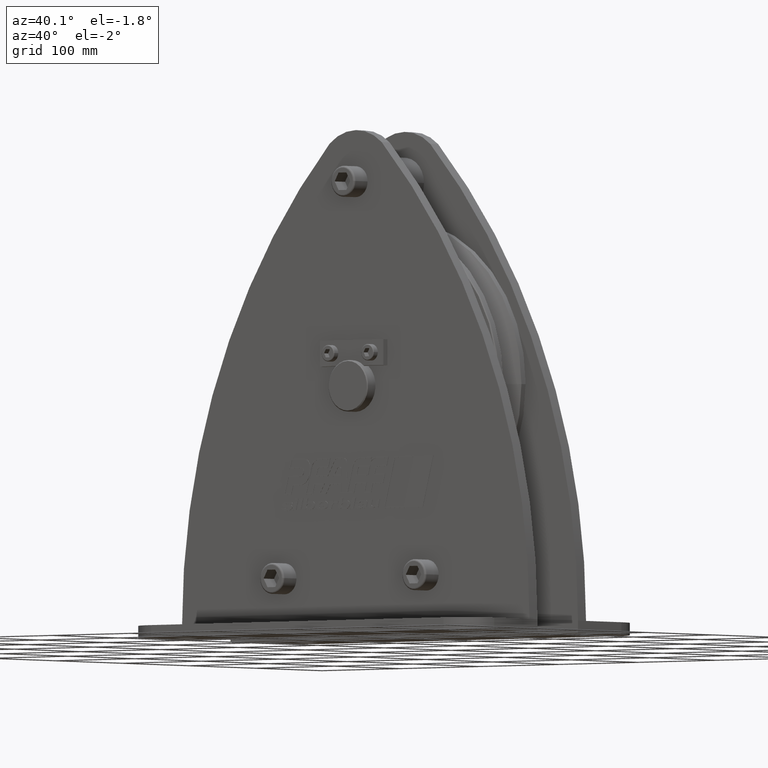
[diagram: clean part render]
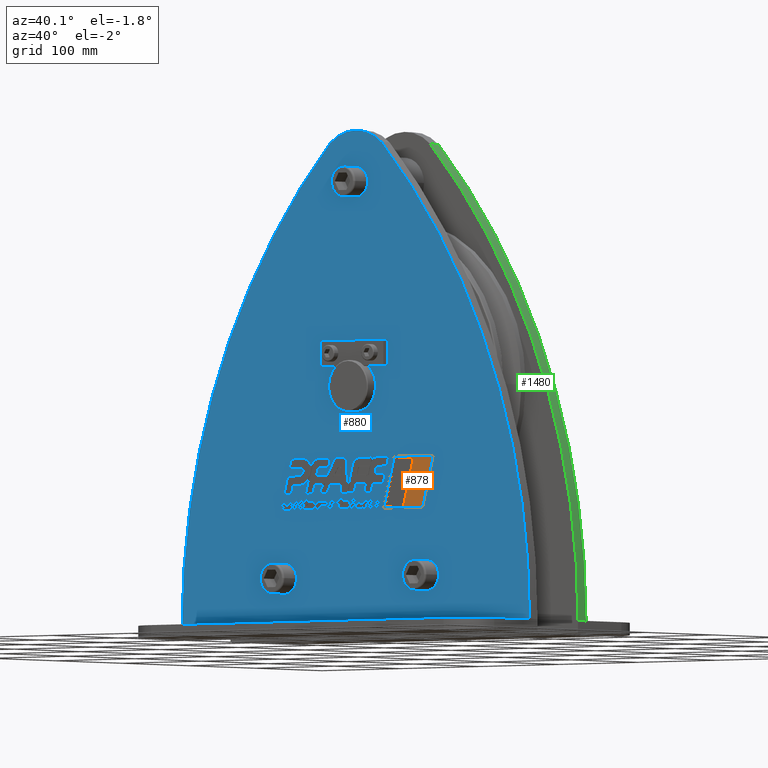
[diagram: same view with three faces highlighted in distinct colors, each labeled with its STEP entity id]
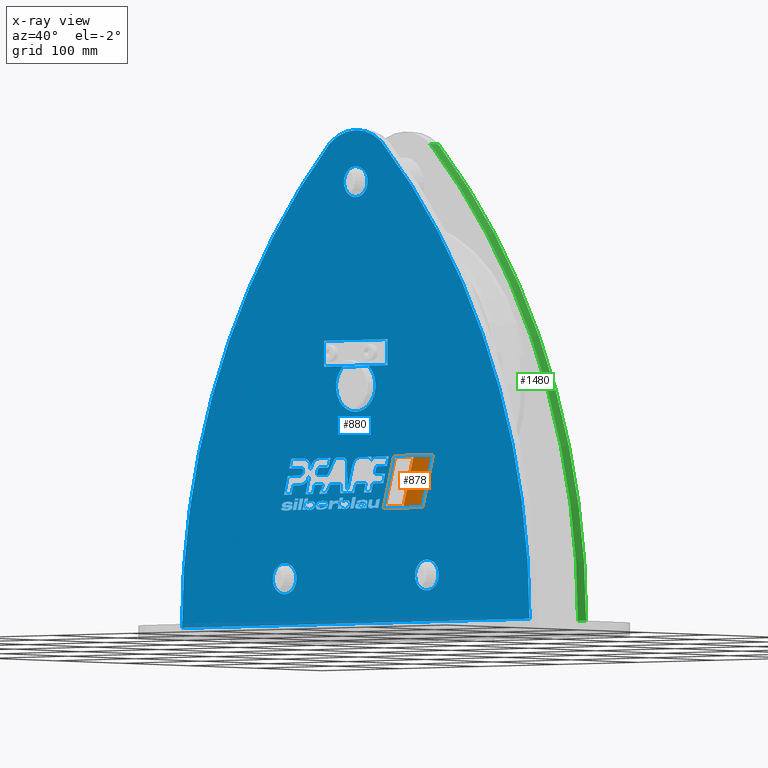
[diagram: x-ray of the same camera — body ghosted, the three highlighted faces saturated]
A machine part, auxiliary view with three faces highlighted in distinct colors.
The next image is the same camera in x-ray (body ghosted, the three faces saturated) — at least one of them is partly hidden behind the body in this view.
Their STEP definitions:

[orange] entity #878 — the highlighted planar face has unit normal (0, -1, 0).
#878=ADVANCED_FACE('',(#2292,#2293),#2294,.T.);
#2292=FACE_OUTER_BOUND('',#4324,.T.);
#2293=FACE_BOUND('',#4325,.T.);
#2294=PLANE('',#4326);
#4324=EDGE_LOOP('',(#7063,#7064,#7065,#7066));
#4325=EDGE_LOOP('',(#7067,#7068,#7069,#7070));
#4326=AXIS2_PLACEMENT_3D('',#7071,#7072,#7073);
#7063=ORIENTED_EDGE('',*,*,#12659,.F.);
#7064=ORIENTED_EDGE('',*,*,#12672,.F.);
#7065=ORIENTED_EDGE('',*,*,#12668,.F.);
#7066=ORIENTED_EDGE('',*,*,#12664,.F.);
#7067=ORIENTED_EDGE('',*,*,#12643,.T.);
#7068=ORIENTED_EDGE('',*,*,#12648,.T.);
#7069=ORIENTED_EDGE('',*,*,#12652,.T.);
#7070=ORIENTED_EDGE('',*,*,#12656,.T.);
#7071=CARTESIAN_POINT('',(66.955972896717,-42.7,-93.9993225368352));
#7072=DIRECTION('',(0.0,-1.0,0.0));
#7073=DIRECTION('',(1.0,0.0,0.0));
#12643=EDGE_CURVE('',#15415,#15416,#15417,.T.);
#12648=EDGE_CURVE('',#15416,#15424,#15425,.T.);
#12652=EDGE_CURVE('',#15424,#15430,#15431,.T.);
#12656=EDGE_CURVE('',#15430,#15415,#15436,.T.);
#12659=EDGE_CURVE('',#15439,#15440,#15441,.T.);
#12664=EDGE_CURVE('',#15440,#15448,#15449,.T.);
#12668=EDGE_CURVE('',#15448,#15454,#15455,.T.);
#12672=EDGE_CURVE('',#15454,#15439,#15460,.T.);
#15415=VERTEX_POINT('',#22319);
#15416=VERTEX_POINT('',#22320);
#15417=LINE('',#22321,#22322);
#15424=VERTEX_POINT('',#22332);
#15425=LINE('',#22333,#22334);
#15430=VERTEX_POINT('',#22341);
#15431=LINE('',#22342,#22343);
#15436=LINE('',#22350,#22351);
#15439=VERTEX_POINT('',#22355);
#15440=VERTEX_POINT('',#22356);
#15441=LINE('',#22357,#22358);
#15448=VERTEX_POINT('',#22368);
#15449=LINE('',#22369,#22370);
#15454=VERTEX_POINT('',#22377);
#15455=LINE('',#22378,#22379);
#15460=LINE('',#22386,#22387);
#22319=CARTESIAN_POINT('',(73.3429207187478,-42.7,-70.1629090736707));
#22320=CARTESIAN_POINT('',(60.5690250746847,-42.7,-117.835736));
#22321=CARTESIAN_POINT('',(73.3429207187478,-42.7,-70.1629090736707));
#22322=VECTOR('',#27597,49.354542213186);
#22332=CARTESIAN_POINT('',(37.0314213346578,-42.7,-117.835736));
#22333=CARTESIAN_POINT('',(60.5690250746847,-42.7,-117.835736));
#22334=VECTOR('',#27601,23.5376037400269);
#22341=CARTESIAN_POINT('',(49.8053169787208,-42.7,-70.1629090736705));
#22342=CARTESIAN_POINT('',(37.0314213346578,-42.7,-117.835736));
#22343=VECTOR('',#27604,49.3545422131862);
#22350=CARTESIAN_POINT('',(49.8053169787208,-42.7,-70.1629090736705));
#22351=VECTOR('',#27607,23.537603740027);
#22355=CARTESIAN_POINT('',(98.3978228494341,-42.7,-68.9986450736705));
#22356=CARTESIAN_POINT('',(85.0,-42.7,-119.0));
#22357=CARTESIAN_POINT('',(98.3978228494341,-42.7,-68.9986450736705));
#22358=VECTOR('',#27609,51.7652117891311);
#22368=CARTESIAN_POINT('',(35.5141229439998,-42.7,-119.0));
#22369=CARTESIAN_POINT('',(85.0,-42.7,-119.0));
#22370=VECTOR('',#27613,49.4858770560002);
#22377=CARTESIAN_POINT('',(48.9119457934339,-42.7,-68.9986450736705));
#22378=CARTESIAN_POINT('',(35.5141229439998,-42.7,-119.0));
#22379=VECTOR('',#27616,51.7652117891311);
#22386=CARTESIAN_POINT('',(48.9119457934339,-42.7,-68.9986450736705));
#22387=VECTOR('',#27619,49.4858770560001);
#27597=DIRECTION('',(-0.258819048283064,-0.0,-0.965925825436844));
#27601=DIRECTION('',(-1.0,0.0,0.0));
#27604=DIRECTION('',(0.258819048283062,0.0,0.965925825436845));
#27607=DIRECTION('',(1.0,0.0,0.0));
#27609=DIRECTION('',(-0.258819048283062,-0.0,-0.965925825436845));
#27613=DIRECTION('',(-1.0,0.0,0.0));
#27616=DIRECTION('',(0.258819048283062,0.0,0.965925825436845));
#27619=DIRECTION('',(1.0,0.0,0.0));

[blue] entity #880 — the highlighted planar face has unit normal (0, -1, 0).
#880=ADVANCED_FACE('',(#2296,#2297,#2298,#2299,#2300,#2301,#2302,#2303,#2304,#2305,#2306,#2307,#2308,#2309,#2310,#2311,#2312,#2313,#2314),#2315,.T.);
#2296=FACE_BOUND('',#4328,.T.);
#2297=FACE_BOUND('',#4329,.T.);
#2298=FACE_BOUND('',#4330,.T.);
#2299=FACE_BOUND('',#4331,.T.);
#2300=FACE_BOUND('',#4332,.T.);
#2301=FACE_BOUND('',#4333,.T.);
#2302=FACE_BOUND('',#4334,.T.);
#2303=FACE_BOUND('',#4335,.T.);
#2304=FACE_BOUND('',#4336,.T.);
#2305=FACE_BOUND('',#4337,.T.);
#2306=FACE_BOUND('',#4338,.T.);
#2307=FACE_BOUND('',#4339,.T.);
#2308=FACE_BOUND('',#4340,.T.);
#2309=FACE_BOUND('',#4341,.T.);
#2310=FACE_BOUND('',#4342,.T.);
#2311=FACE_BOUND('',#4343,.T.);
#2312=FACE_BOUND('',#4344,.T.);
#2313=FACE_BOUND('',#4345,.T.);
#2314=FACE_OUTER_BOUND('',#4346,.T.);
#2315=PLANE('',#4347);
#4328=EDGE_LOOP('',(#7075,#7076,#7077,#7078));
#4329=EDGE_LOOP('',(#7079,#7080,#7081,#7082));
#4330=EDGE_LOOP('',(#7083,#7084,#7085,#7086));
#4331=EDGE_LOOP('',(#7087,#7088,#7089,#7090));
#4332=EDGE_LOOP('',(#7091,#7092,#7093,#7094));
#4333=EDGE_LOOP('',(#7095,#7096,#7097,#7098,#7099,#7100,#7101,#7102,#7103));
#4334=EDGE_LOOP('',(#7104,#7105,#7106,#7107,#7108,#7109,#7110,#7111,#7112,#7113,#7114,#7115,#7116,#7117,#7118));
#4335=EDGE_LOOP('',(#7119,#7120,#7121,#7122,#7123,#7124,#7125,#7126,#7127,#7128,#7129,#7130,#7131,#7132,#7133,#7134,#7135,#7136,#7137,#7138));
#4336=EDGE_LOOP('',(#7139,#7140,#7141,#7142,#7143,#7144,#7145,#7146,#7147,#7148));
#4337=EDGE_LOOP('',(#7149,#7150,#7151,#7152,#7153,#7154,#7155,#7156,#7157,#7158,#7159,#7160,#7161,#7162,#7163,#7164,#7165));
#4338=EDGE_LOOP('',(#7166,#7167,#7168,#7169,#7170,#7171,#7172,#7173,#7174,#7175,#7176,#7177));
#4339=EDGE_LOOP('',(#7178,#7179,#7180,#7181,#7182,#7183,#7184,#7185,#7186,#7187,#7188,#7189));
#4340=EDGE_LOOP('',(#7190,#7191,#7192,#7193,#7194,#7195,#7196,#7197,#7198,#7199,#7200,#7201,#7202,#7203,#7204,#7205,#7206,#7207,#7208,#7209,#7210,#7211,#7212,#7213,#7214,#7215,#7216,#7217,#7218,#7219,#7220,#7221,#7222,#7223,#7224,#7225,#7226,#7227,#7228,#7229,#7230,#7231,#7232,#7233,#7234,#7235,#7236,#7237,#7238,#7239,#7240,#7241,#7242,#7243));
#4341=EDGE_LOOP('',(#7244,#7245));
#4342=EDGE_LOOP('',(#7246,#7247));
#4343=EDGE_LOOP('',(#7248,#7249));
#4344=EDGE_LOOP('',(#7250,#7251,#7252,#7253));
#4345=EDGE_LOOP('',(#7254,#7255,#7256));
#4346=EDGE_LOOP('',(#7257,#7258,#7259,#7260));
#4347=AXIS2_PLACEMENT_3D('',#7261,#7262,#7263);
#7075=ORIENTED_EDGE('',*,*,#12661,.T.);
#7076=ORIENTED_EDGE('',*,*,#12666,.T.);
#7077=ORIENTED_EDGE('',*,*,#12670,.T.);
#7078=ORIENTED_EDGE('',*,*,#12673,.T.);
#7079=ORIENTED_EDGE('',*,*,#12676,.T.);
#7080=ORIENTED_EDGE('',*,*,#12677,.T.);
#7081=ORIENTED_EDGE('',*,*,#12678,.T.);
#7082=ORIENTED_EDGE('',*,*,#12679,.T.);
#7083=ORIENTED_EDGE('',*,*,#12680,.T.);
#7084=ORIENTED_EDGE('',*,*,#12681,.T.);
#7085=ORIENTED_EDGE('',*,*,#12682,.T.);
#7086=ORIENTED_EDGE('',*,*,#12683,.T.);
#7087=ORIENTED_EDGE('',*,*,#12684,.T.);
#7088=ORIENTED_EDGE('',*,*,#12685,.T.);
#7089=ORIENTED_EDGE('',*,*,#12686,.T.);
#7090=ORIENTED_EDGE('',*,*,#12687,.T.);
#7091=ORIENTED_EDGE('',*,*,#12688,.T.);
#7092=ORIENTED_EDGE('',*,*,#12689,.T.);
#7093=ORIENTED_EDGE('',*,*,#12690,.T.);
#7094=ORIENTED_EDGE('',*,*,#12691,.T.);
#7095=ORIENTED_EDGE('',*,*,#12692,.T.);
#7096=ORIENTED_EDGE('',*,*,#12693,.T.);
#7097=ORIENTED_EDGE('',*,*,#12694,.T.);
#7098=ORIENTED_EDGE('',*,*,#12695,.T.);
#7099=ORIENTED_EDGE('',*,*,#12696,.T.);
#7100=ORIENTED_EDGE('',*,*,#12697,.T.);
#7101=ORIENTED_EDGE('',*,*,#12698,.T.);
#7102=ORIENTED_EDGE('',*,*,#12699,.T.);
#7103=ORIENTED_EDGE('',*,*,#12700,.T.);
#7104=ORIENTED_EDGE('',*,*,#12701,.T.);
#7105=ORIENTED_EDGE('',*,*,#12702,.T.);
#7106=ORIENTED_EDGE('',*,*,#12703,.T.);
#7107=ORIENTED_EDGE('',*,*,#12704,.T.);
#7108=ORIENTED_EDGE('',*,*,#12705,.T.);
#7109=ORIENTED_EDGE('',*,*,#12706,.T.);
#7110=ORIENTED_EDGE('',*,*,#12707,.T.);
#7111=ORIENTED_EDGE('',*,*,#12708,.T.);
#7112=ORIENTED_EDGE('',*,*,#12709,.T.);
#7113=ORIENTED_EDGE('',*,*,#12710,.T.);
#7114=ORIENTED_EDGE('',*,*,#12711,.T.);
#7115=ORIENTED_EDGE('',*,*,#12712,.T.);
#7116=ORIENTED_EDGE('',*,*,#12713,.T.);
#7117=ORIENTED_EDGE('',*,*,#12714,.T.);
#7118=ORIENTED_EDGE('',*,*,#12715,.T.);
#7119=ORIENTED_EDGE('',*,*,#12716,.T.);
#7120=ORIENTED_EDGE('',*,*,#12717,.T.);
#7121=ORIENTED_EDGE('',*,*,#12718,.T.);
#7122=ORIENTED_EDGE('',*,*,#12719,.T.);
#7123=ORIENTED_EDGE('',*,*,#12720,.T.);
#7124=ORIENTED_EDGE('',*,*,#12721,.T.);
#7125=ORIENTED_EDGE('',*,*,#12722,.T.);
#7126=ORIENTED_EDGE('',*,*,#12723,.T.);
#7127=ORIENTED_EDGE('',*,*,#12724,.T.);
#7128=ORIENTED_EDGE('',*,*,#12725,.T.);
#7129=ORIENTED_EDGE('',*,*,#12726,.T.);
#7130=ORIENTED_EDGE('',*,*,#12727,.T.);
#7131=ORIENTED_EDGE('',*,*,#12728,.T.);
#7132=ORIENTED_EDGE('',*,*,#12729,.T.);
#7133=ORIENTED_EDGE('',*,*,#12730,.T.);
#7134=ORIENTED_EDGE('',*,*,#12731,.T.);
#7135=ORIENTED_EDGE('',*,*,#12732,.T.);
#7136=ORIENTED_EDGE('',*,*,#12733,.T.);
#7137=ORIENTED_EDGE('',*,*,#12734,.T.);
#7138=ORIENTED_EDGE('',*,*,#12735,.T.);
#7139=ORIENTED_EDGE('',*,*,#12736,.T.);
#7140=ORIENTED_EDGE('',*,*,#12737,.T.);
#7141=ORIENTED_EDGE('',*,*,#12738,.T.);
#7142=ORIENTED_EDGE('',*,*,#12739,.T.);
#7143=ORIENTED_EDGE('',*,*,#12740,.T.);
#7144=ORIENTED_EDGE('',*,*,#12741,.T.);
#7145=ORIENTED_EDGE('',*,*,#12742,.T.);
#7146=ORIENTED_EDGE('',*,*,#12743,.T.);
#7147=ORIENTED_EDGE('',*,*,#12744,.T.);
#7148=ORIENTED_EDGE('',*,*,#12745,.T.);
#7149=ORIENTED_EDGE('',*,*,#12746,.T.);
#7150=ORIENTED_EDGE('',*,*,#12747,.T.);
#7151=ORIENTED_EDGE('',*,*,#12748,.T.);
#7152=ORIENTED_EDGE('',*,*,#12749,.T.);
#7153=ORIENTED_EDGE('',*,*,#12750,.T.);
#7154=ORIENTED_EDGE('',*,*,#12751,.T.);
#7155=ORIENTED_EDGE('',*,*,#12752,.T.);
#7156=ORIENTED_EDGE('',*,*,#12753,.T.);
#7157=ORIENTED_EDGE('',*,*,#12754,.T.);
#7158=ORIENTED_EDGE('',*,*,#12755,.T.);
#7159=ORIENTED_EDGE('',*,*,#12756,.T.);
#7160=ORIENTED_EDGE('',*,*,#12757,.T.);
#7161=ORIENTED_EDGE('',*,*,#12758,.T.);
#7162=ORIENTED_EDGE('',*,*,#12759,.T.);
#7163=ORIENTED_EDGE('',*,*,#12760,.T.);
#7164=ORIENTED_EDGE('',*,*,#12761,.T.);
#7165=ORIENTED_EDGE('',*,*,#12762,.T.);
#7166=ORIENTED_EDGE('',*,*,#12763,.T.);
#7167=ORIENTED_EDGE('',*,*,#12764,.T.);
#7168=ORIENTED_EDGE('',*,*,#12765,.T.);
#7169=ORIENTED_EDGE('',*,*,#12766,.T.);
#7170=ORIENTED_EDGE('',*,*,#12767,.T.);
#7171=ORIENTED_EDGE('',*,*,#12768,.T.);
#7172=ORIENTED_EDGE('',*,*,#12769,.T.);
#7173=ORIENTED_EDGE('',*,*,#12770,.T.);
#7174=ORIENTED_EDGE('',*,*,#12771,.T.);
#7175=ORIENTED_EDGE('',*,*,#12772,.T.);
#7176=ORIENTED_EDGE('',*,*,#12773,.T.);
#7177=ORIENTED_EDGE('',*,*,#12774,.T.);
#7178=ORIENTED_EDGE('',*,*,#12775,.T.);
#7179=ORIENTED_EDGE('',*,*,#12776,.T.);
#7180=ORIENTED_EDGE('',*,*,#12777,.T.);
#7181=ORIENTED_EDGE('',*,*,#12778,.T.);
#7182=ORIENTED_EDGE('',*,*,#12779,.T.);
#7183=ORIENTED_EDGE('',*,*,#12780,.T.);
#7184=ORIENTED_EDGE('',*,*,#12781,.T.);
#7185=ORIENTED_EDGE('',*,*,#12782,.T.);
#7186=ORIENTED_EDGE('',*,*,#12783,.T.);
#7187=ORIENTED_EDGE('',*,*,#12784,.T.);
#7188=ORIENTED_EDGE('',*,*,#12785,.T.);
#7189=ORIENTED_EDGE('',*,*,#12786,.T.);
#7190=ORIENTED_EDGE('',*,*,#12787,.T.);
#7191=ORIENTED_EDGE('',*,*,#12788,.T.);
#7192=ORIENTED_EDGE('',*,*,#12789,.T.);
#7193=ORIENTED_EDGE('',*,*,#12790,.T.);
#7194=ORIENTED_EDGE('',*,*,#12791,.T.);
#7195=ORIENTED_EDGE('',*,*,#12792,.T.);
#7196=ORIENTED_EDGE('',*,*,#12793,.T.);
#7197=ORIENTED_EDGE('',*,*,#12794,.T.);
#7198=ORIENTED_EDGE('',*,*,#12795,.T.);
#7199=ORIENTED_EDGE('',*,*,#12796,.T.);
#7200=ORIENTED_EDGE('',*,*,#12797,.T.);
#7201=ORIENTED_EDGE('',*,*,#12798,.T.);
#7202=ORIENTED_EDGE('',*,*,#12799,.T.);
#7203=ORIENTED_EDGE('',*,*,#12800,.T.);
#7204=ORIENTED_EDGE('',*,*,#12801,.T.);
#7205=ORIENTED_EDGE('',*,*,#12802,.T.);
#7206=ORIENTED_EDGE('',*,*,#12803,.T.);
#7207=ORIENTED_EDGE('',*,*,#12804,.T.);
#7208=ORIENTED_EDGE('',*,*,#12805,.T.);
#7209=ORIENTED_EDGE('',*,*,#12806,.T.);
#7210=ORIENTED_EDGE('',*,*,#12807,.T.);
#7211=ORIENTED_EDGE('',*,*,#12808,.T.);
#7212=ORIENTED_EDGE('',*,*,#12809,.T.);
#7213=ORIENTED_EDGE('',*,*,#12810,.T.);
#7214=ORIENTED_EDGE('',*,*,#12811,.T.);
#7215=ORIENTED_EDGE('',*,*,#12812,.T.);
#7216=ORIENTED_EDGE('',*,*,#12813,.T.);
#7217=ORIENTED_EDGE('',*,*,#12814,.T.);
#7218=ORIENTED_EDGE('',*,*,#12815,.T.);
#7219=ORIENTED_EDGE('',*,*,#12816,.T.);
#7220=ORIENTED_EDGE('',*,*,#12817,.T.);
#7221=ORIENTED_EDGE('',*,*,#12818,.T.);
#7222=ORIENTED_EDGE('',*,*,#12819,.T.);
#7223=ORIENTED_EDGE('',*,*,#12820,.T.);
#7224=ORIENTED_EDGE('',*,*,#12821,.T.);
#7225=ORIENTED_EDGE('',*,*,#12822,.T.);
#7226=ORIENTED_EDGE('',*,*,#12823,.T.);
#7227=ORIENTED_EDGE('',*,*,#12824,.T.);
#7228=ORIENTED_EDGE('',*,*,#12825,.T.);
#7229=ORIENTED_EDGE('',*,*,#12826,.T.);
#7230=ORIENTED_EDGE('',*,*,#12827,.T.);
#7231=ORIENTED_EDGE('',*,*,#12828,.T.);
#7232=ORIENTED_EDGE('',*,*,#12829,.T.);
#7233=ORIENTED_EDGE('',*,*,#12830,.T.);
#7234=ORIENTED_EDGE('',*,*,#12831,.T.);
#7235=ORIENTED_EDGE('',*,*,#12832,.T.);
#7236=ORIENTED_EDGE('',*,*,#12833,.T.);
#7237=ORIENTED_EDGE('',*,*,#12834,.T.);
#7238=ORIENTED_EDGE('',*,*,#12835,.T.);
#7239=ORIENTED_EDGE('',*,*,#12836,.T.);
#7240=ORIENTED_EDGE('',*,*,#12837,.T.);
#7241=ORIENTED_EDGE('',*,*,#12838,.T.);
#7242=ORIENTED_EDGE('',*,*,#12839,.T.);
#7243=ORIENTED_EDGE('',*,*,#12840,.T.);
#7244=ORIENTED_EDGE('',*,*,#12187,.T.);
#7245=ORIENTED_EDGE('',*,*,#12841,.T.);
#7246=ORIENTED_EDGE('',*,*,#12196,.T.);
#7247=ORIENTED_EDGE('',*,*,#12842,.T.);
#7248=ORIENTED_EDGE('',*,*,#12205,.T.);
#7249=ORIENTED_EDGE('',*,*,#12843,.T.);
#7250=ORIENTED_EDGE('',*,*,#12844,.T.);
#7251=ORIENTED_EDGE('',*,*,#12845,.T.);
#7252=ORIENTED_EDGE('',*,*,#12846,.T.);
#7253=ORIENTED_EDGE('',*,*,#12847,.T.);
#7254=ORIENTED_EDGE('',*,*,#12848,.T.);
#7255=ORIENTED_EDGE('',*,*,#12234,.T.);
#7256=ORIENTED_EDGE('',*,*,#12849,.T.);
#7257=ORIENTED_EDGE('',*,*,#12850,.T.);
#7258=ORIENTED_EDGE('',*,*,#12851,.F.);
#7259=ORIENTED_EDGE('',*,*,#12852,.F.);
#7260=ORIENTED_EDGE('',*,*,#12853,.F.);
#7261=CARTESIAN_POINT('',(2.36144437337771E-012,-42.5,-51.555144316737));
#7262=DIRECTION('',(0.0,-1.0,0.0));
#7263=DIRECTION('',(1.0,0.0,0.0));
#12187=EDGE_CURVE('',#14655,#14657,#14659,.T.);
#12196=EDGE_CURVE('',#14670,#14672,#14674,.T.);
#12205=EDGE_CURVE('',#14685,#14687,#14689,.T.);
#12234=EDGE_CURVE('',#14732,#14740,#14742,.T.);
#12661=EDGE_CURVE('',#15444,#15442,#15445,.T.);
#12666=EDGE_CURVE('',#15442,#15450,#15452,.T.);
#12670=EDGE_CURVE('',#15450,#15456,#15458,.T.);
#12673=EDGE_CURVE('',#15456,#15444,#15461,.T.);
#12676=EDGE_CURVE('',#15464,#15465,#15466,.T.);
#12677=EDGE_CURVE('',#15465,#15467,#15468,.T.);
#12678=EDGE_CURVE('',#15467,#15469,#15470,.T.);
#12679=EDGE_CURVE('',#15469,#15464,#15471,.T.);
#12680=EDGE_CURVE('',#15472,#15473,#15474,.T.);
#12681=EDGE_CURVE('',#15473,#15475,#15476,.T.);
#12682=EDGE_CURVE('',#15475,#15477,#15478,.T.);
#12683=EDGE_CURVE('',#15477,#15472,#15479,.T.);
#12684=EDGE_CURVE('',#15480,#15481,#15482,.T.);
#12685=EDGE_CURVE('',#15481,#15483,#15484,.T.);
#12686=EDGE_CURVE('',#15483,#15485,#15486,.T.);
#12687=EDGE_CURVE('',#15485,#15480,#15487,.T.);
#12688=EDGE_CURVE('',#15488,#15489,#15490,.T.);
#12689=EDGE_CURVE('',#15489,#15491,#15492,.T.);
#12690=EDGE_CURVE('',#15491,#15493,#15494,.T.);
#12691=EDGE_CURVE('',#15493,#15488,#15495,.T.);
#12692=EDGE_CURVE('',#15496,#15497,#15498,.T.);
#12693=EDGE_CURVE('',#15497,#15499,#15500,.T.);
#12694=EDGE_CURVE('',#15499,#15501,#15502,.T.);
#12695=EDGE_CURVE('',#15501,#15503,#15504,.T.);
#12696=EDGE_CURVE('',#15503,#15505,#15506,.T.);
#12697=EDGE_CURVE('',#15505,#15507,#15508,.T.);
#12698=EDGE_CURVE('',#15507,#15509,#15510,.T.);
#12699=EDGE_CURVE('',#15509,#15511,#15512,.T.);
#12700=EDGE_CURVE('',#15511,#15496,#15513,.T.);
#12701=EDGE_CURVE('',#15514,#15515,#15516,.T.);
#12702=EDGE_CURVE('',#15515,#15517,#15518,.T.);
#12703=EDGE_CURVE('',#15517,#15519,#15520,.T.);
#12704=EDGE_CURVE('',#15519,#15521,#15522,.T.);
#12705=EDGE_CURVE('',#15521,#15523,#15524,.T.);
#12706=EDGE_CURVE('',#15523,#15525,#15526,.T.);
#12707=EDGE_CURVE('',#15525,#15527,#15528,.T.);
#12708=EDGE_CURVE('',#15527,#15529,#15530,.T.);
#12709=EDGE_CURVE('',#15529,#15531,#15532,.T.);
#12710=EDGE_CURVE('',#15531,#15533,#15534,.T.);
#12711=EDGE_CURVE('',#15533,#15535,#15536,.T.);
#12712=EDGE_CURVE('',#15535,#15537,#15538,.T.);
#12713=EDGE_CURVE('',#15537,#15539,#15540,.T.);
#12714=EDGE_CURVE('',#15539,#15541,#15542,.T.);
#12715=EDGE_CURVE('',#15541,#15514,#15543,.T.);
#12716=EDGE_CURVE('',#15544,#15545,#15546,.T.);
#12717=EDGE_CURVE('',#15545,#15547,#15548,.T.);
#12718=EDGE_CURVE('',#15547,#15549,#15550,.T.);
#12719=EDGE_CURVE('',#15549,#15551,#15552,.T.);
#12720=EDGE_CURVE('',#15551,#15553,#15554,.T.);
#12721=EDGE_CURVE('',#15553,#15555,#15556,.T.);
#12722=EDGE_CURVE('',#15555,#15557,#15558,.T.);
#12723=EDGE_CURVE('',#15557,#15559,#15560,.T.);
#12724=EDGE_CURVE('',#15559,#15561,#15562,.T.);
#12725=EDGE_CURVE('',#15561,#15563,#15564,.T.);
#12726=EDGE_CURVE('',#15563,#15565,#15566,.T.);
#12727=EDGE_CURVE('',#15565,#15567,#15568,.T.);
#12728=EDGE_CURVE('',#15567,#15569,#15570,.T.);
#12729=EDGE_CURVE('',#15569,#15571,#15572,.T.);
#12730=EDGE_CURVE('',#15571,#15573,#15574,.T.);
#12731=EDGE_CURVE('',#15573,#15575,#15576,.T.);
#12732=EDGE_CURVE('',#15575,#15577,#15578,.T.);
#12733=EDGE_CURVE('',#15577,#15579,#15580,.T.);
#12734=EDGE_CURVE('',#15579,#15581,#15582,.T.);
#12735=EDGE_CURVE('',#15581,#15544,#15583,.T.);
#12736=EDGE_CURVE('',#15584,#15585,#15586,.T.);
#12737=EDGE_CURVE('',#15585,#15587,#15588,.T.);
#12738=EDGE_CURVE('',#15587,#15589,#15590,.T.);
#12739=EDGE_CURVE('',#15589,#15591,#15592,.T.);
#12740=EDGE_CURVE('',#15591,#15593,#15594,.T.);
#12741=EDGE_CURVE('',#15593,#15595,#15596,.T.);
#12742=EDGE_CURVE('',#15595,#15597,#15598,.T.);
#12743=EDGE_CURVE('',#15597,#15599,#15600,.T.);
#12744=EDGE_CURVE('',#15599,#15601,#15602,.T.);
#12745=EDGE_CURVE('',#15601,#15584,#15603,.T.);
#12746=EDGE_CURVE('',#15604,#15605,#15606,.T.);
#12747=EDGE_CURVE('',#15605,#15607,#15608,.T.);
#12748=EDGE_CURVE('',#15607,#15609,#15610,.T.);
#12749=EDGE_CURVE('',#15609,#15611,#15612,.T.);
#12750=EDGE_CURVE('',#15611,#15613,#15614,.T.);
#12751=EDGE_CURVE('',#15613,#15615,#15616,.T.);
#12752=EDGE_CURVE('',#15615,#15617,#15618,.T.);
#12753=EDGE_CURVE('',#15617,#15619,#15620,.T.);
#12754=EDGE_CURVE('',#15619,#15621,#15622,.T.);
#12755=EDGE_CURVE('',#15621,#15623,#15624,.T.);
#12756=EDGE_CURVE('',#15623,#15625,#15626,.T.);
#12757=EDGE_CURVE('',#15625,#15627,#15628,.T.);
#12758=EDGE_CURVE('',#15627,#15629,#15630,.T.);
#12759=EDGE_CURVE('',#15629,#15631,#15632,.T.);
#12760=EDGE_CURVE('',#15631,#15633,#15634,.T.);
#12761=EDGE_CURVE('',#15633,#15635,#15636,.T.);
#12762=EDGE_CURVE('',#15635,#15604,#15637,.T.);
#12763=EDGE_CURVE('',#15638,#15639,#15640,.T.);
#12764=EDGE_CURVE('',#15639,#15641,#15642,.T.);
#12765=EDGE_CURVE('',#15641,#15643,#15644,.T.);
#12766=EDGE_CURVE('',#15643,#15645,#15646,.T.);
#12767=EDGE_CURVE('',#15645,#15647,#15648,.T.);
#12768=EDGE_CURVE('',#15647,#15649,#15650,.T.);
#12769=EDGE_CURVE('',#15649,#15651,#15652,.T.);
#12770=EDGE_CURVE('',#15651,#15653,#15654,.T.);
#12771=EDGE_CURVE('',#15653,#15655,#15656,.T.);
#12772=EDGE_CURVE('',#15655,#15657,#15658,.T.);
#12773=EDGE_CURVE('',#15657,#15659,#15660,.T.);
#12774=EDGE_CURVE('',#15659,#15638,#15661,.T.);
#12775=EDGE_CURVE('',#15662,#15663,#15664,.T.);
#12776=EDGE_CURVE('',#15663,#15665,#15666,.T.);
#12777=EDGE_CURVE('',#15665,#15667,#15668,.T.);
#12778=EDGE_CURVE('',#15667,#15669,#15670,.T.);
#12779=EDGE_CURVE('',#15669,#15671,#15672,.T.);
#12780=EDGE_CURVE('',#15671,#15673,#15674,.T.);
#12781=EDGE_CURVE('',#15673,#15675,#15676,.T.);
#12782=EDGE_CURVE('',#15675,#15677,#15678,.T.);
#12783=EDGE_CURVE('',#15677,#15679,#15680,.T.);
#12784=EDGE_CURVE('',#15679,#15681,#15682,.T.);
#12785=EDGE_CURVE('',#15681,#15683,#15684,.T.);
#12786=EDGE_CURVE('',#15683,#15662,#15685,.T.);
#12787=EDGE_CURVE('',#15686,#15687,#15688,.T.);
#12788=EDGE_CURVE('',#15687,#15689,#15690,.T.);
#12789=EDGE_CURVE('',#15689,#15691,#15692,.T.);
#12790=EDGE_CURVE('',#15691,#15693,#15694,.T.);
#12791=EDGE_CURVE('',#15693,#15695,#15696,.T.);
#12792=EDGE_CURVE('',#15695,#15697,#15698,.T.);
#12793=EDGE_CURVE('',#15697,#15699,#15700,.T.);
#12794=EDGE_CURVE('',#15699,#15701,#15702,.T.);
#12795=EDGE_CURVE('',#15701,#15703,#15704,.T.);
#12796=EDGE_CURVE('',#15703,#15705,#15706,.T.);
#12797=EDGE_CURVE('',#15705,#15707,#15708,.T.);
#12798=EDGE_CURVE('',#15707,#15709,#15710,.T.);
#12799=EDGE_CURVE('',#15709,#15711,#15712,.T.);
#12800=EDGE_CURVE('',#15711,#15713,#15714,.T.);
#12801=EDGE_CURVE('',#15713,#15715,#15716,.T.);
#12802=EDGE_CURVE('',#15715,#15717,#15718,.T.);
#12803=EDGE_CURVE('',#15717,#15719,#15720,.T.);
#12804=EDGE_CURVE('',#15719,#15721,#15722,.T.);
#12805=EDGE_CURVE('',#15721,#15723,#15724,.T.);
#12806=EDGE_CURVE('',#15723,#15725,#15726,.T.);
#12807=EDGE_CURVE('',#15725,#15727,#15728,.T.);
#12808=EDGE_CURVE('',#15727,#15729,#15730,.T.);
#12809=EDGE_CURVE('',#15729,#15731,#15732,.T.);
#12810=EDGE_CURVE('',#15731,#15733,#15734,.T.);
#12811=EDGE_CURVE('',#15733,#15735,#15736,.T.);
#12812=EDGE_CURVE('',#15735,#15737,#15738,.T.);
#12813=EDGE_CURVE('',#15737,#15739,#15740,.T.);
#12814=EDGE_CURVE('',#15739,#15741,#15742,.T.);
#12815=EDGE_CURVE('',#15741,#15743,#15744,.T.);
#12816=EDGE_CURVE('',#15743,#15745,#15746,.T.);
#12817=EDGE_CURVE('',#15745,#15747,#15748,.T.);
#12818=EDGE_CURVE('',#15747,#15749,#15750,.T.);
#12819=EDGE_CURVE('',#15749,#15751,#15752,.T.);
#12820=EDGE_CURVE('',#15751,#15753,#15754,.T.);
#12821=EDGE_CURVE('',#15753,#15755,#15756,.T.);
#12822=EDGE_CURVE('',#15755,#15757,#15758,.T.);
#12823=EDGE_CURVE('',#15757,#15759,#15760,.T.);
#12824=EDGE_CURVE('',#15759,#15761,#15762,.T.);
#12825=EDGE_CURVE('',#15761,#15763,#15764,.T.);
#12826=EDGE_CURVE('',#15763,#15765,#15766,.T.);
#12827=EDGE_CURVE('',#15765,#15767,#15768,.T.);
#12828=EDGE_CURVE('',#15767,#15769,#15770,.T.);
#12829=EDGE_CURVE('',#15769,#15771,#15772,.T.);
#12830=EDGE_CURVE('',#15771,#15773,#15774,.T.);
#12831=EDGE_CURVE('',#15773,#15775,#15776,.T.);
#12832=EDGE_CURVE('',#15775,#15777,#15778,.T.);
#12833=EDGE_CURVE('',#15777,#15779,#15780,.T.);
#12834=EDGE_CURVE('',#15779,#15781,#15782,.T.);
#12835=EDGE_CURVE('',#15781,#15783,#15784,.T.);
#12836=EDGE_CURVE('',#15783,#15785,#15786,.T.);
#12837=EDGE_CURVE('',#15785,#15787,#15788,.T.);
#12838=EDGE_CURVE('',#15787,#15789,#15790,.T.);
#12839=EDGE_CURVE('',#15789,#15791,#15792,.T.);
#12840=EDGE_CURVE('',#15791,#15686,#15793,.T.);
#12841=EDGE_CURVE('',#14657,#14655,#15794,.T.);
#12842=EDGE_CURVE('',#14672,#14670,#15795,.T.);
#12843=EDGE_CURVE('',#14687,#14685,#15796,.T.);
#12844=EDGE_CURVE('',#15797,#15798,#15799,.T.);
#12845=EDGE_CURVE('',#15798,#15800,#15801,.T.);
#12846=EDGE_CURVE('',#15800,#15802,#15803,.T.);
#12847=EDGE_CURVE('',#15802,#15797,#15804,.T.);
#12848=EDGE_CURVE('',#15805,#14732,#15806,.T.);
#12849=EDGE_CURVE('',#14740,#15805,#15807,.T.);
#12850=EDGE_CURVE('',#15808,#15809,#15810,.T.);
#12851=EDGE_CURVE('',#15811,#15809,#15812,.T.);
#12852=EDGE_CURVE('',#15813,#15811,#15814,.T.);
#12853=EDGE_CURVE('',#15808,#15813,#15815,.T.);
#14655=VERTEX_POINT('',#19410);
#14657=VERTEX_POINT('',#19413);
#14659=CIRCLE('',#19416,15.0);
#14670=VERTEX_POINT('',#19427);
#14672=VERTEX_POINT('',#19430);
#14674=CIRCLE('',#19433,15.0);
#14685=VERTEX_POINT('',#19444);
#14687=VERTEX_POINT('',#19447);
#14689=CIRCLE('',#19450,15.0);
#14732=VERTEX_POINT('',#19501);
#14740=VERTEX_POINT('',#19511);
#14742=CIRCLE('',#19514,25.0);
#15442=VERTEX_POINT('',#22359);
#15444=VERTEX_POINT('',#22362);
#15445=LINE('',#22363,#22364);
#15450=VERTEX_POINT('',#22371);
#15452=LINE('',#22374,#22375);
#15456=VERTEX_POINT('',#22380);
#15458=LINE('',#22383,#22384);
#15461=LINE('',#22388,#22389);
#15464=VERTEX_POINT('',#22392);
#15465=VERTEX_POINT('',#22393);
#15466=LINE('',#22394,#22395);
#15467=VERTEX_POINT('',#22396);
#15468=LINE('',#22397,#22398);
#15469=VERTEX_POINT('',#22399);
#15470=LINE('',#22400,#22401);
#15471=LINE('',#22402,#22403);
#15472=VERTEX_POINT('',#22404);
#15473=VERTEX_POINT('',#22405);
#15474=LINE('',#22406,#22407);
#15475=VERTEX_POINT('',#22408);
#15476=LINE('',#22409,#22410);
#15477=VERTEX_POINT('',#22411);
#15478=LINE('',#22412,#22413);
#15479=LINE('',#22414,#22415);
#15480=VERTEX_POINT('',#22416);
#15481=VERTEX_POINT('',#22417);
#15482=LINE('',#22418,#22419);
#15483=VERTEX_POINT('',#22420);
#15484=LINE('',#22421,#22422);
#15485=VERTEX_POINT('',#22423);
#15486=LINE('',#22424,#22425);
#15487=LINE('',#22426,#22427);
#15488=VERTEX_POINT('',#22428);
#15489=VERTEX_POINT('',#22429);
#15490=LINE('',#22430,#22431);
#15491=VERTEX_POINT('',#22432);
#15492=LINE('',#22433,#22434);
#15493=VERTEX_POINT('',#22435);
#15494=LINE('',#22436,#22437);
#15495=LINE('',#22438,#22439);
#15496=VERTEX_POINT('',#22440);
#15497=VERTEX_POINT('',#22441);
#15498=LINE('',#22442,#22443);
#15499=VERTEX_POINT('',#22444);
#15500=CIRCLE('',#22445,6.34834090990634);
#15501=VERTEX_POINT('',#22446);
#15502=CIRCLE('',#22447,2.31965052364361);
#15503=VERTEX_POINT('',#22448);
#15504=LINE('',#22449,#22450);
#15505=VERTEX_POINT('',#22451);
#15506=LINE('',#22452,#22453);
#15507=VERTEX_POINT('',#22454);
#15508=LINE('',#22455,#22456);
#15509=VERTEX_POINT('',#22457);
#15510=LINE('',#22458,#22459);
#15511=VERTEX_POINT('',#22460);
#15512=LINE('',#22461,#22462);
#15513=CIRCLE('',#22463,7.73216830684855);
#15514=VERTEX_POINT('',#22464);
#15515=VERTEX_POINT('',#22465);
#15516=CIRCLE('',#22466,1.15982469237575);
#15517=VERTEX_POINT('',#22467);
#15518=CIRCLE('',#22468,5.79912631890007);
#15519=VERTEX_POINT('',#22469);
#15520=CIRCLE('',#22470,2.31965059245917);
#15521=VERTEX_POINT('',#22471);
#15522=LINE('',#22472,#22473);
#15523=VERTEX_POINT('',#22474);
#15524=LINE('',#22475,#22476);
#15525=VERTEX_POINT('',#22477);
#15526=LINE('',#22478,#22479);
#15527=VERTEX_POINT('',#22480);
#15528=LINE('',#22481,#22482);
#15529=VERTEX_POINT('',#22483);
#15530=LINE('',#22484,#22485);
#15531=VERTEX_POINT('',#22486);
#15532=CIRCLE('',#22487,2.6074314559964);
#15533=VERTEX_POINT('',#22488);
#15534=CIRCLE('',#22489,12.8869471160049);
#15535=VERTEX_POINT('',#22490);
#15536=CIRCLE('',#22491,6.44347350148546);
#15537=VERTEX_POINT('',#22492);
#15538=CIRCLE('',#22493,2.31965037791003);
#15539=VERTEX_POINT('',#22494);
#15540=LINE('',#22495,#22496);
#15541=VERTEX_POINT('',#22497);
#15542=LINE('',#22498,#22499);
#15543=LINE('',#22500,#22501);
#15544=VERTEX_POINT('',#22502);
#15545=VERTEX_POINT('',#22503);
#15546=CIRCLE('',#22504,5.47695253593591);
#15547=VERTEX_POINT('',#22505);
#15548=CIRCLE('',#22506,25.7738942996229);
#15549=VERTEX_POINT('',#22507);
#15550=CIRCLE('',#22508,2.31965048381516);
#15551=VERTEX_POINT('',#22509);
#15552=LINE('',#22510,#22511);
#15553=VERTEX_POINT('',#22512);
#15554=CIRCLE('',#22513,2.5773894269041);
#15555=VERTEX_POINT('',#22514);
#15556=CIRCLE('',#22515,5.1547788518729);
#15557=VERTEX_POINT('',#22516);
#15558=CIRCLE('',#22517,0.451043157078292);
#15559=VERTEX_POINT('',#22518);
#15560=LINE('',#22519,#22520);
#15561=VERTEX_POINT('',#22521);
#15562=CIRCLE('',#22522,12.8869471231204);
#15563=VERTEX_POINT('',#22523);
#15564=CIRCLE('',#22524,1.85572038860187);
#15565=VERTEX_POINT('',#22525);
#15566=CIRCLE('',#22526,5.47695254333888);
#15567=VERTEX_POINT('',#22527);
#15568=CIRCLE('',#22528,21.1069086247041);
#15569=VERTEX_POINT('',#22529);
#15570=CIRCLE('',#22530,25.7738942571764);
#15571=VERTEX_POINT('',#22531);
#15572=CIRCLE('',#22532,2.31965050435265);
#15573=VERTEX_POINT('',#22533);
#15574=LINE('',#22534,#22535);
#15575=VERTEX_POINT('',#22536);
#15576=CIRCLE('',#22537,2.5773894269041);
#15577=VERTEX_POINT('',#22538);
#15578=CIRCLE('',#22539,5.1547788518729);
#15579=VERTEX_POINT('',#22540);
#15580=CIRCLE('',#22541,0.451043157078291);
#15581=VERTEX_POINT('',#22542);
#15582=LINE('',#22543,#22544);
#15583=CIRCLE('',#22545,1.85572038085896);
#15584=VERTEX_POINT('',#22546);
#15585=VERTEX_POINT('',#22547);
#15586=LINE('',#22548,#22549);
#15587=VERTEX_POINT('',#22550);
#15588=CIRCLE('',#22551,1.44333810233441);
#15589=VERTEX_POINT('',#22552);
#15590=CIRCLE('',#22553,5.1547788503573);
#15591=VERTEX_POINT('',#22554);
#15592=LINE('',#22555,#22556);
#15593=VERTEX_POINT('',#22557);
#15594=CIRCLE('',#22558,6.44347358687625);
#15595=VERTEX_POINT('',#22559);
#15596=CIRCLE('',#22560,20.6191154449973);
#15597=VERTEX_POINT('',#22561);
#15598=CIRCLE('',#22562,3.2217367754719);
#15599=VERTEX_POINT('',#22563);
#15600=CIRCLE('',#22564,6.70121253278065);
#15601=VERTEX_POINT('',#22565);
#15602=CIRCLE('',#22566,29.1105092213687);
#15603=CIRCLE('',#22567,3.81453639978481);
#15604=VERTEX_POINT('',#22568);
#15605=VERTEX_POINT('',#22569);
#15606=CIRCLE('',#22570,1.93304214800754);
#15607=VERTEX_POINT('',#22571);
#15608=LINE('',#22572,#22573);
#15609=VERTEX_POINT('',#22574);
#15610=LINE('',#22575,#22576);
#15611=VERTEX_POINT('',#22577);
#15612=CIRCLE('',#22578,6.443473575);
#15613=VERTEX_POINT('',#22579);
#15614=LINE('',#22580,#22581);
#15615=VERTEX_POINT('',#22582);
#15616=CIRCLE('',#22583,12.886947143395);
#15617=VERTEX_POINT('',#22584);
#15618=CIRCLE('',#22585,1.80417250568046);
#15619=VERTEX_POINT('',#22586);
#15620=CIRCLE('',#22587,3.22173678790428);
#15621=VERTEX_POINT('',#22588);
#15622=LINE('',#22589,#22590);
#15623=VERTEX_POINT('',#22591);
#15624=CIRCLE('',#22592,0.644347377691245);
#15625=VERTEX_POINT('',#22593);
#15626=CIRCLE('',#22594,12.8869471153194);
#15627=VERTEX_POINT('',#22595);
#15628=CIRCLE('',#22596,2.31965050205316);
#15629=VERTEX_POINT('',#22597);
#15630=LINE('',#22598,#22599);
#15631=VERTEX_POINT('',#22600);
#15632=CIRCLE('',#22601,3.22173678130942);
#15633=VERTEX_POINT('',#22602);
#15634=CIRCLE('',#22603,25.7738942505711);
#15635=VERTEX_POINT('',#22604);
#15636=CIRCLE('',#22605,1.93304214800753);
#15637=LINE('',#22606,#22607);
#15638=VERTEX_POINT('',#22608);
#15639=VERTEX_POINT('',#22609);
#15640=LINE('',#22610,#22611);
#15641=VERTEX_POINT('',#22612);
#15642=LINE('',#22613,#22614);
#15643=VERTEX_POINT('',#22615);
#15644=LINE('',#22616,#22617);
#15645=VERTEX_POINT('',#22618);
#15646=CIRCLE('',#22619,6.4434735642225);
#15647=VERTEX_POINT('',#22620);
#15648=CIRCLE('',#22621,12.3714692643255);
#15649=VERTEX_POINT('',#22622);
#15650=CIRCLE('',#22623,6.44347358566343);
#15651=VERTEX_POINT('',#22624);
#15652=CIRCLE('',#22625,3.09286729540112);
#15653=VERTEX_POINT('',#22626);
#15654=CIRCLE('',#22627,6.44347357876215);
#15655=VERTEX_POINT('',#22628);
#15656=CIRCLE('',#22629,12.3714692638316);
#15657=VERTEX_POINT('',#22630);
#15658=CIRCLE('',#22631,6.12129990529626);
#15659=VERTEX_POINT('',#22632);
#15660=LINE('',#22633,#22634);
#15661=LINE('',#22635,#22636);
#15662=VERTEX_POINT('',#22637);
#15663=VERTEX_POINT('',#22638);
#15664=CIRCLE('',#22639,6.44347357876214);
#15665=VERTEX_POINT('',#22640);
#15666=CIRCLE('',#22641,12.3714692638316);
#15667=VERTEX_POINT('',#22642);
#15668=CIRCLE('',#22643,6.12129990529625);
#15669=VERTEX_POINT('',#22644);
#15670=LINE('',#22645,#22646);
#15671=VERTEX_POINT('',#22647);
#15672=LINE('',#22648,#22649);
#15673=VERTEX_POINT('',#22650);
#15674=LINE('',#22651,#22652);
#15675=VERTEX_POINT('',#22653);
#15676=LINE('',#22654,#22655);
#15677=VERTEX_POINT('',#22656);
#15678=LINE('',#22657,#22658);
#15679=VERTEX_POINT('',#22659);
#15680=CIRCLE('',#22660,6.4434735642225);
#15681=VERTEX_POINT('',#22661);
#15682=CIRCLE('',#22662,12.3714692508523);
#15683=VERTEX_POINT('',#22663);
#15684=CIRCLE('',#22664,6.44347358566342);
#15685=CIRCLE('',#22665,3.09286729540111);
#15686=VERTEX_POINT('',#22666);
#15687=VERTEX_POINT('',#22667);
#15688=LINE('',#22668,#22669);
#15689=VERTEX_POINT('',#22670);
#15690=LINE('',#22671,#22672);
#15691=VERTEX_POINT('',#22673);
#15692=CIRCLE('',#22674,4.381562031);
#15693=VERTEX_POINT('',#22675);
#15694=LINE('',#22676,#22677);
#15695=VERTEX_POINT('',#22678);
#15696=CIRCLE('',#22679,2.6289372186);
#15697=VERTEX_POINT('',#22680);
#15698=LINE('',#22681,#22682);
#15699=VERTEX_POINT('',#22683);
#15700=LINE('',#22684,#22685);
#15701=VERTEX_POINT('',#22686);
#15702=LINE('',#22687,#22688);
#15703=VERTEX_POINT('',#22689);
#15704=CIRCLE('',#22690,9.02086301297409);
#15705=VERTEX_POINT('',#22691);
#15706=LINE('',#22692,#22693);
#15707=VERTEX_POINT('',#22694);
#15708=CIRCLE('',#22695,11.082774549);
#15709=VERTEX_POINT('',#22696);
#15710=LINE('',#22697,#22698);
#15711=VERTEX_POINT('',#22699);
#15712=LINE('',#22700,#22701);
#15713=VERTEX_POINT('',#22702);
#15714=LINE('',#22703,#22704);
#15715=VERTEX_POINT('',#22705);
#15716=CIRCLE('',#22706,2.6289372186);
#15717=VERTEX_POINT('',#22707);
#15718=LINE('',#22708,#22709);
#15719=VERTEX_POINT('',#22710);
#15720=LINE('',#22711,#22712);
#15721=VERTEX_POINT('',#22713);
#15722=LINE('',#22714,#22715);
#15723=VERTEX_POINT('',#22716);
#15724=CIRCLE('',#22717,4.897039917);
#15725=VERTEX_POINT('',#22718);
#15726=LINE('',#22719,#22720);
#15727=VERTEX_POINT('',#22721);
#15728=CIRCLE('',#22722,4.89703988666172);
#15729=VERTEX_POINT('',#22723);
#15730=LINE('',#22724,#22725);
#15731=VERTEX_POINT('',#22726);
#15732=LINE('',#22727,#22728);
#15733=VERTEX_POINT('',#22729);
#15734=CIRCLE('',#22730,11.082774549);
#15735=VERTEX_POINT('',#22731);
#15736=LINE('',#22732,#22733);
#15737=VERTEX_POINT('',#22734);
#15738=LINE('',#22735,#22736);
#15739=VERTEX_POINT('',#22737);
#15740=CIRCLE('',#22738,11.082774549);
#15741=VERTEX_POINT('',#22739);
#15742=LINE('',#22740,#22741);
#15743=VERTEX_POINT('',#22742);
#15744=LINE('',#22743,#22744);
#15745=VERTEX_POINT('',#22745);
#15746=LINE('',#22746,#22747);
#15747=VERTEX_POINT('',#22748);
#15748=CIRCLE('',#22749,2.6289372186);
#15749=VERTEX_POINT('',#22750);
#15750=LINE('',#22751,#22752);
#15751=VERTEX_POINT('',#22753);
#15752=LINE('',#22754,#22755);
#15753=VERTEX_POINT('',#22756);
#15754=LINE('',#22757,#22758);
#15755=VERTEX_POINT('',#22759);
#15756=LINE('',#22760,#22761);
#15757=VERTEX_POINT('',#22762);
#15758=LINE('',#22763,#22764);
#15759=VERTEX_POINT('',#22765);
#15760=LINE('',#22766,#22767);
#15761=VERTEX_POINT('',#22768);
#15762=LINE('',#22769,#22770);
#15763=VERTEX_POINT('',#22771);
#15764=LINE('',#22772,#22773);
#15765=VERTEX_POINT('',#22774);
#15766=LINE('',#22775,#22776);
#15767=VERTEX_POINT('',#22777);
#15768=LINE('',#22778,#22779);
#15769=VERTEX_POINT('',#22780);
#15770=LINE('',#22781,#22782);
#15771=VERTEX_POINT('',#22783);
#15772=LINE('',#22784,#22785);
#15773=VERTEX_POINT('',#22786);
#15774=LINE('',#22787,#22788);
#15775=VERTEX_POINT('',#22789);
#15776=LINE('',#22790,#22791);
#15777=VERTEX_POINT('',#22792);
#15778=LINE('',#22793,#22794);
#15779=VERTEX_POINT('',#22795);
#15780=LINE('',#22796,#22797);
#15781=VERTEX_POINT('',#22798);
#15782=LINE('',#22799,#22800);
#15783=VERTEX_POINT('',#22801);
#15784=LINE('',#22802,#22803);
#15785=VERTEX_POINT('',#22804);
#15786=LINE('',#22805,#22806);
#15787=VERTEX_POINT('',#22807);
#15788=CIRCLE('',#22808,12.113730321);
#15789=VERTEX_POINT('',#22809);
#15790=LINE('',#22810,#22811);
#15791=VERTEX_POINT('',#22812);
#15792=LINE('',#22813,#22814);
#15793=LINE('',#22815,#22816);
#15794=CIRCLE('',#22817,15.0);
#15795=CIRCLE('',#22818,15.0);
#15796=CIRCLE('',#22819,15.0);
#15797=VERTEX_POINT('',#22820);
#15798=VERTEX_POINT('',#22821);
#15799=LINE('',#22822,#22823);
#15800=VERTEX_POINT('',#22824);
#15801=LINE('',#22825,#22826);
#15802=VERTEX_POINT('',#22827);
#15803=LINE('',#22828,#22829);
#15804=LINE('',#22830,#22831);
#15805=VERTEX_POINT('',#22832);
#15806=CIRCLE('',#22833,25.0);
#15807=LINE('',#22834,#22835);
#15808=VERTEX_POINT('',#22836);
#15809=VERTEX_POINT('',#22837);
#15810=LINE('',#22838,#22839);
#15811=VERTEX_POINT('',#22840);
#15812=CIRCLE('',#22841,673.000000007101);
#15813=VERTEX_POINT('',#22842);
#15814=CIRCLE('',#22843,50.0000000084);
#15815=CIRCLE('',#22844,673.0000000071);
#19410=CARTESIAN_POINT('',(-75.0,-42.5,-185.0));
#19413=CARTESIAN_POINT('',(-105.0,-42.5,-185.0));
#19416=AXIS2_PLACEMENT_3D('',#26966,#26967,#26968);
#19427=CARTESIAN_POINT('',(105.0,-42.5,-185.0));
#19430=CARTESIAN_POINT('',(75.0,-42.5,-185.0));
#19433=AXIS2_PLACEMENT_3D('',#26983,#26984,#26985);
#19444=CARTESIAN_POINT('',(15.0,-42.5,198.0));
#19447=CARTESIAN_POINT('',(-15.0,-42.5,198.0));
#19450=AXIS2_PLACEMENT_3D('',#27000,#27001,#27002);
#19501=CARTESIAN_POINT('',(3.06161699786838E-015,-42.5,-25.0));
#19511=CARTESIAN_POINT('',(-16.2480768092719,-42.5,19.0));
#19514=AXIS2_PLACEMENT_3D('',#27050,#27051,#27052);
#22359=CARTESIAN_POINT('',(85.0,-42.5,-119.0));
#22362=CARTESIAN_POINT('',(98.3978228494341,-42.5,-68.9986450736705));
#22363=CARTESIAN_POINT('',(97.2825582417363,-42.5,-73.1608691986613));
#22364=VECTOR('',#27611,1.0);
#22371=CARTESIAN_POINT('',(35.5141229439998,-42.5,-119.0));
#22374=CARTESIAN_POINT('',(42.5000000000012,-42.5,-119.0));
#22375=VECTOR('',#27615,1.0);
#22380=CARTESIAN_POINT('',(48.9119457934339,-42.5,-68.9986450736705));
#22383=CARTESIAN_POINT('',(42.7552324009928,-42.5,-91.9758119592692));
#22384=VECTOR('',#27618,1.0);
#22388=CARTESIAN_POINT('',(24.4559728967181,-42.5,-68.9986450736705));
#22389=VECTOR('',#27620,1.0);
#22392=CARTESIAN_POINT('',(-72.5464039513705,-42.5,-107.65948652367));
#22393=CARTESIAN_POINT('',(-72.9607696128851,-42.5,-109.205920161051));
#22394=CARTESIAN_POINT('',(-63.1035169403519,-42.5,-72.4181538938106));
#22395=VECTOR('',#27621,1.0);
#22396=CARTESIAN_POINT('',(-77.2300655089019,-42.5,-109.205920161051));
#22397=CARTESIAN_POINT('',(-36.4803848064414,-42.5,-109.205920161051));
#22398=VECTOR('',#27622,1.0);
#22399=CARTESIAN_POINT('',(-76.8156998473873,-42.5,-107.65948652367));
#22400=CARTESIAN_POINT('',(-67.4370013575828,-42.5,-72.6577087062816));
#22401=VECTOR('',#27623,1.0);
#22402=CARTESIAN_POINT('',(-38.4078499236925,-42.5,-107.65948652367));
#22403=VECTOR('',#27624,1.0);
#22404=CARTESIAN_POINT('',(-79.7438837317065,-42.5,-118.587617691406));
#22405=CARTESIAN_POINT('',(-77.5617486205968,-42.5,-110.443778446934));
#22406=CARTESIAN_POINT('',(-68.6939111156413,-42.5,-77.3485577528653));
#22407=VECTOR('',#27625,1.0);
#22408=CARTESIAN_POINT('',(-73.2924527245799,-42.5,-110.443778446934));
#22409=CARTESIAN_POINT('',(-38.7808743102972,-42.5,-110.443778446934));
#22410=VECTOR('',#27626,1.0);
#22411=CARTESIAN_POINT('',(-75.4745879387854,-42.5,-118.587617691406));
#22412=CARTESIAN_POINT('',(-63.4765414402998,-42.5,-73.8102999086766));
#22413=VECTOR('',#27627,1.0);
#22414=CARTESIAN_POINT('',(-37.7372939693915,-42.5,-118.587617691406));
#22415=VECTOR('',#27628,1.0);
#22416=CARTESIAN_POINT('',(-4.07381857710945,-42.5,-107.659486523671));
#22417=CARTESIAN_POINT('',(0.195477215812261,-42.5,-107.659486523671));
#22418=CARTESIAN_POINT('',(-2.03690928855354,-42.5,-107.659486523671));
#22419=VECTOR('',#27629,1.0);
#22420=CARTESIAN_POINT('',(-2.73270666850689,-42.5,-118.587617691406));
#22421=CARTESIAN_POINT('',(7.20197267012228,-42.5,-81.5108891760562));
#22422=VECTOR('',#27630,1.0);
#22423=CARTESIAN_POINT('',(-7.00200246142801,-42.5,-118.587617691406));
#22424=CARTESIAN_POINT('',(-1.36635333425227,-42.5,-118.587617691406));
#22425=VECTOR('',#27631,1.0);
#22426=CARTESIAN_POINT('',(1.61157922667668,-42.5,-86.4412927916249));
#22427=VECTOR('',#27632,1.0);
#22428=CARTESIAN_POINT('',(-70.6827010774195,-42.5,-107.65948652367));
#22429=CARTESIAN_POINT('',(-66.4134052844978,-42.5,-107.65948652367));
#22430=CARTESIAN_POINT('',(-35.3413505387086,-42.5,-107.65948652367));
#22431=VECTOR('',#27633,1.0);
#22432=CARTESIAN_POINT('',(-69.3415891688169,-42.5,-118.587617691406));
#22433=CARTESIAN_POINT('',(-57.175935348252,-42.5,-73.1847789542766));
#22434=VECTOR('',#27634,1.0);
#22435=CARTESIAN_POINT('',(-73.610884961738,-42.5,-118.587617691406));
#22436=CARTESIAN_POINT('',(-34.6707945844073,-42.5,-118.587617691406));
#22437=VECTOR('',#27635,1.0);
#22438=CARTESIAN_POINT('',(-62.7663287916984,-42.5,-78.1151825698475));
#22439=VECTOR('',#27636,1.0);
#22440=CARTESIAN_POINT('',(-21.8466843763472,-42.5,-110.806051485557));
#22441=CARTESIAN_POINT('',(-22.6638543551573,-42.5,-113.855771075634));
#22442=CARTESIAN_POINT('',(-13.7085950628746,-42.5,-80.434291571868));
#22443=VECTOR('',#27637,1.0);
#22444=CARTESIAN_POINT('',(-28.6027972756357,-42.5,-114.037138151241));
#22445=AXIS2_PLACEMENT_3D('',#27638,#27639,#27640);
#22446=CARTESIAN_POINT('',(-29.6958041214947,-42.5,-115.452651528421));
#22447=AXIS2_PLACEMENT_3D('',#27641,#27642,#27643);
#22448=CARTESIAN_POINT('',(-30.5358158532932,-42.5,-118.587617691406));
#22449=CARTESIAN_POINT('',(-20.7139940415593,-42.5,-81.9320831636597));
#22450=VECTOR('',#27644,1.0);
#22451=CARTESIAN_POINT('',(-34.8051116462149,-42.5,-118.587617691406));
#22452=CARTESIAN_POINT('',(-15.2679079266454,-42.5,-118.587617691406));
#22453=VECTOR('',#27645,1.0);
#22454=CARTESIAN_POINT('',(-32.6229755041494,-42.5,-110.443774993233));
#22455=CARTESIAN_POINT('',(-25.2603019865545,-42.5,-82.9659041998249));
#22456=VECTOR('',#27646,1.0);
#22457=CARTESIAN_POINT('',(-28.3536797112284,-42.5,-110.443774993233));
#22458=CARTESIAN_POINT('',(-16.3114877520735,-42.5,-110.443774993233));
#22459=VECTOR('',#27647,1.0);
#22460=CARTESIAN_POINT('',(-28.7539262249877,-42.5,-111.937515194264));
#22461=CARTESIAN_POINT('',(-20.0429320034312,-42.5,-79.4276448709053));
#22462=VECTOR('',#27648,1.0);
#22463=AXIS2_PLACEMENT_3D('',#27649,#27650,#27651);
#22464=CARTESIAN_POINT('',(20.1397433804084,-42.5,-115.188469007478));
#22465=CARTESIAN_POINT('',(21.0430945750237,-42.5,-116.628006322999));
#22466=AXIS2_PLACEMENT_3D('',#27652,#27653,#27654);
#22467=CARTESIAN_POINT('',(23.3785824097843,-42.5,-116.593886646977));
#22468=AXIS2_PLACEMENT_3D('',#27655,#27656,#27657);
#22469=CARTESIAN_POINT('',(25.1189049147042,-42.5,-114.929197276868));
#22470=AXIS2_PLACEMENT_3D('',#27658,#27659,#27660);
#22471=CARTESIAN_POINT('',(26.3207693627385,-42.5,-110.443774437528));
#22472=CARTESIAN_POINT('',(32.1993334373044,-42.5,-88.5046567560758));
#22473=VECTOR('',#27661,1.0);
#22474=CARTESIAN_POINT('',(30.5900654649461,-42.5,-110.443774437528));
#22475=CARTESIAN_POINT('',(13.1603846813704,-42.5,-110.443774437528));
#22476=VECTOR('',#27662,1.0);
#22477=CARTESIAN_POINT('',(28.4079300445505,-42.5,-118.587617135702));
#22478=CARTESIAN_POINT('',(36.9265699755104,-42.5,-86.79561057566));
#22479=VECTOR('',#27663,1.0);
#22480=CARTESIAN_POINT('',(24.1386339423423,-42.5,-118.587617135702));
#22481=CARTESIAN_POINT('',(14.2039650222764,-42.5,-118.587617135702));
#22482=VECTOR('',#27664,1.0);
#22483=CARTESIAN_POINT('',(24.4721728775227,-42.5,-117.342833626077));
#22484=CARTESIAN_POINT('',(31.7092055405668,-42.5,-90.3338761479912));
#22485=VECTOR('',#27665,1.0);
#22486=CARTESIAN_POINT('',(23.3273480923146,-42.5,-118.173899384893));
#22487=AXIS2_PLACEMENT_3D('',#27666,#27667,#27668);
#22488=CARTESIAN_POINT('',(19.6665337520942,-42.5,-118.944745456711));
#22489=AXIS2_PLACEMENT_3D('',#27669,#27670,#27671);
#22490=CARTESIAN_POINT('',(17.1965856106335,-42.5,-118.614998206705));
#22491=AXIS2_PLACEMENT_3D('',#27672,#27673,#27674);
#22492=CARTESIAN_POINT('',(15.7017314265456,-42.5,-115.818125390834));
#22493=AXIS2_PLACEMENT_3D('',#27675,#27676,#27677);
#22494=CARTESIAN_POINT('',(17.1417838513,-42.5,-110.443774993233));
#22495=CARTESIAN_POINT('',(23.2086940190172,-42.5,-87.8017513338196));
#22496=VECTOR('',#27678,1.0);
#22497=CARTESIAN_POINT('',(21.4110799535082,-42.5,-110.443774993233));
#22498=CARTESIAN_POINT('',(8.57089192565119,-42.5,-110.443774993233));
#22499=VECTOR('',#27679,1.0);
#22500=CARTESIAN_POINT('',(28.0550221784807,-42.5,-85.6482380970026));
#22501=VECTOR('',#27680,1.0);
#22502=CARTESIAN_POINT('',(-80.670081229145,-42.5,-116.83511032707));
#22503=CARTESIAN_POINT('',(-83.9076768848348,-42.5,-118.625400362773));
#22504=AXIS2_PLACEMENT_3D('',#27681,#27682,#27683);
#22505=CARTESIAN_POINT('',(-92.6896079632789,-42.5,-118.532229798579));
#22506=AXIS2_PLACEMENT_3D('',#27684,#27685,#27686);
#22507=CARTESIAN_POINT('',(-94.5806405219778,-42.5,-116.457006466187));
#22508=AXIS2_PLACEMENT_3D('',#27687,#27688,#27689);
#22509=CARTESIAN_POINT('',(-89.5456320930971,-42.5,-116.457006466187));
#22510=CARTESIAN_POINT('',(-47.2903202609877,-42.5,-116.457006466187));
#22511=VECTOR('',#27690,1.0);
#22512=CARTESIAN_POINT('',(-88.2652044785619,-42.5,-117.055706907285));
#22513=AXIS2_PLACEMENT_3D('',#27691,#27692,#27693);
#22514=CARTESIAN_POINT('',(-85.4174669888573,-42.5,-116.705332701234));
#22515=AXIS2_PLACEMENT_3D('',#27694,#27695,#27696);
#22516=CARTESIAN_POINT('',(-85.5814713039746,-42.5,-115.839838823689));
#22517=AXIS2_PLACEMENT_3D('',#27697,#27698,#27699);
#22518=CARTESIAN_POINT('',(-90.7177586731997,-42.5,-115.686181608323));
#22519=CARTESIAN_POINT('',(-43.7897086493731,-42.5,-117.090081540481));
#22520=VECTOR('',#27700,1.0);
#22521=CARTESIAN_POINT('',(-92.1683231954441,-42.5,-115.560498513369));
#22522=AXIS2_PLACEMENT_3D('',#27701,#27702,#27703);
#22523=CARTESIAN_POINT('',(-93.0030080441538,-42.5,-112.565738865738));
#22524=AXIS2_PLACEMENT_3D('',#27704,#27705,#27706);
#22525=CARTESIAN_POINT('',(-89.8866754595415,-42.5,-110.796493814144));
#22526=AXIS2_PLACEMENT_3D('',#27707,#27708,#27709);
#22527=CARTESIAN_POINT('',(-84.5191113161214,-42.5,-110.498939567089));
#22528=AXIS2_PLACEMENT_3D('',#27710,#27711,#27712);
#22529=CARTESIAN_POINT('',(-81.6485995363752,-42.5,-110.869825734603));
#22530=AXIS2_PLACEMENT_3D('',#27713,#27714,#27715);
#22531=CARTESIAN_POINT('',(-79.7640763534382,-42.5,-112.943842736738));
#22532=AXIS2_PLACEMENT_3D('',#27716,#27717,#27718);
#22533=CARTESIAN_POINT('',(-84.5277036552092,-42.5,-112.943842736738));
#22534=CARTESIAN_POINT('',(-39.8820381767179,-42.5,-112.943842736738));
#22535=VECTOR('',#27719,1.0);
#22536=CARTESIAN_POINT('',(-85.8081312697439,-42.5,-112.34514229564));
#22537=AXIS2_PLACEMENT_3D('',#27720,#27721,#27722);
#22538=CARTESIAN_POINT('',(-88.6558687599706,-42.5,-112.695516501914));
#22539=AXIS2_PLACEMENT_3D('',#27723,#27724,#27725);
#22540=CARTESIAN_POINT('',(-88.4918644443321,-42.5,-113.561010379236));
#22541=AXIS2_PLACEMENT_3D('',#27726,#27727,#27728);
#22542=CARTESIAN_POINT('',(-82.0083143812732,-42.5,-113.754972315649));
#22543=CARTESIAN_POINT('',(-45.2121501583937,-42.5,-114.855766663782));
#22544=VECTOR('',#27729,1.0);
#22545=AXIS2_PLACEMENT_3D('',#27730,#27731,#27732);
#22546=CARTESIAN_POINT('',(-35.2997048425682,-42.5,-115.469684381732));
#22547=CARTESIAN_POINT('',(-46.0603057128183,-42.5,-115.469684381732));
#22548=CARTESIAN_POINT('',(-17.6498524212829,-42.5,-115.469684381732));
#22549=VECTOR('',#27733,1.0);
#22550=CARTESIAN_POINT('',(-45.1002214000223,-42.5,-117.346089736172));
#22551=AXIS2_PLACEMENT_3D('',#27734,#27735,#27736);
#22552=CARTESIAN_POINT('',(-40.3653907088504,-42.5,-116.339553278747));
#22553=AXIS2_PLACEMENT_3D('',#27737,#27738,#27739);
#22554=CARTESIAN_POINT('',(-35.7389766813862,-42.5,-116.339553278747));
#22555=CARTESIAN_POINT('',(-20.182695354424,-42.5,-116.339553278747));
#22556=VECTOR('',#27740,1.0);
#22557=CARTESIAN_POINT('',(-38.6785391450534,-42.5,-118.149737025318));
#22558=AXIS2_PLACEMENT_3D('',#27741,#27742,#27743);
#22559=CARTESIAN_POINT('',(-48.1547911402017,-42.5,-118.610793504263));
#22560=AXIS2_PLACEMENT_3D('',#27744,#27745,#27746);
#22561=CARTESIAN_POINT('',(-50.3152161807873,-42.5,-113.76211338632));
#22562=AXIS2_PLACEMENT_3D('',#27747,#27748,#27749);
#22563=CARTESIAN_POINT('',(-45.272778711461,-42.5,-110.591487549465));
#22564=AXIS2_PLACEMENT_3D('',#27750,#27751,#27752);
#22565=CARTESIAN_POINT('',(-38.477639300793,-42.5,-110.701666547178));
#22566=AXIS2_PLACEMENT_3D('',#27753,#27754,#27755);
#22567=AXIS2_PLACEMENT_3D('',#27756,#27757,#27758);
#22568=CARTESIAN_POINT('',(13.6296525695838,-42.5,-117.272068018973));
#22569=CARTESIAN_POINT('',(13.7441064659121,-42.5,-118.587618105084));
#22570=AXIS2_PLACEMENT_3D('',#27759,#27760,#27761);
#22571=CARTESIAN_POINT('',(9.62028400498176,-42.5,-118.587618105084));
#22572=CARTESIAN_POINT('',(6.87205323295723,-42.5,-118.587618105084));
#22573=VECTOR('',#27762,1.0);
#22574=CARTESIAN_POINT('',(9.62028400498176,-42.5,-117.556661608485));
#22575=CARTESIAN_POINT('',(9.62028400498176,-42.5,-85.0713812109105));
#22576=VECTOR('',#27763,1.0);
#22577=CARTESIAN_POINT('',(5.60956257211261,-42.5,-118.957074079389));
#22578=AXIS2_PLACEMENT_3D('',#27764,#27765,#27766);
#22579=CARTESIAN_POINT('',(3.42505275747774,-42.5,-118.957074079389));
#22580=CARTESIAN_POINT('',(2.80478128605749,-42.5,-118.957074079389));
#22581=VECTOR('',#27767,1.0);
#22582=CARTESIAN_POINT('',(0.523751173693412,-42.5,-118.626235242177));
#22583=AXIS2_PLACEMENT_3D('',#27768,#27769,#27770);
#22584=CARTESIAN_POINT('',(-0.812763450976547,-42.5,-116.401425991655));
#22585=AXIS2_PLACEMENT_3D('',#27771,#27772,#27773);
#22586=CARTESIAN_POINT('',(2.09771708697967,-42.5,-114.019842106677));
#22587=AXIS2_PLACEMENT_3D('',#27774,#27775,#27776);
#22588=CARTESIAN_POINT('',(9.82932793919382,-42.5,-113.535381040555));
#22589=CARTESIAN_POINT('',(3.00231908739209,-42.5,-113.963159940708));
#22590=VECTOR('',#27777,1.0);
#22591=CARTESIAN_POINT('',(9.85505359776808,-42.5,-112.251338826289));
#22592=AXIS2_PLACEMENT_3D('',#27778,#27779,#27780);
#22593=CARTESIAN_POINT('',(6.40964436564452,-42.5,-112.359917950153));
#22594=AXIS2_PLACEMENT_3D('',#27781,#27782,#27783);
#22595=CARTESIAN_POINT('',(5.02086147973921,-42.5,-113.150033894733));
#22596=AXIS2_PLACEMENT_3D('',#27784,#27785,#27786);
#22597=CARTESIAN_POINT('',(0.897038391739301,-42.5,-113.150033894733));
#22598=CARTESIAN_POINT('',(2.51043073987079,-42.5,-113.150033894733));
#22599=VECTOR('',#27787,1.0);
#22600=CARTESIAN_POINT('',(3.21580337522039,-42.5,-111.089202343517));
#22601=AXIS2_PLACEMENT_3D('',#27788,#27789,#27790);
#22602=CARTESIAN_POINT('',(13.1704875071292,-42.5,-110.792070849921));
#22603=AXIS2_PLACEMENT_3D('',#27791,#27792,#27793);
#22604=CARTESIAN_POINT('',(14.7209480748187,-42.5,-113.199299084757));
#22605=AXIS2_PLACEMENT_3D('',#27794,#27795,#27796);
#22606=CARTESIAN_POINT('',(21.9334110414371,-42.5,-86.2820296845632));
#22607=VECTOR('',#27797,1.0);
#22608=CARTESIAN_POINT('',(-23.001954380331,-42.5,-118.587617691406));
#22609=CARTESIAN_POINT('',(-20.0737704960125,-42.5,-107.65948652367));
#22610=CARTESIAN_POINT('',(-13.8524759303636,-42.5,-84.4412988235633));
#22611=VECTOR('',#27798,1.0);
#22612=CARTESIAN_POINT('',(-15.8044745999957,-42.5,-107.65948652367));
#22613=CARTESIAN_POINT('',(-10.0368852480051,-42.5,-107.65948652367));
#22614=VECTOR('',#27799,1.0);
#22615=CARTESIAN_POINT('',(-16.8551215912608,-42.5,-111.580554525248));
#22616=CARTESIAN_POINT('',(-8.26208238728123,-42.5,-79.510895220879));
#22617=VECTOR('',#27800,1.0);
#22618=CARTESIAN_POINT('',(-14.1173656497326,-42.5,-110.549875626377));
#22619=AXIS2_PLACEMENT_3D('',#27801,#27802,#27803);
#22620=CARTESIAN_POINT('',(-10.8838015964762,-42.5,-110.549875654254));
#22621=AXIS2_PLACEMENT_3D('',#27804,#27805,#27806);
#22622=CARTESIAN_POINT('',(-8.72281900585062,-42.5,-111.23721111542));
#22623=AXIS2_PLACEMENT_3D('',#27807,#27808,#27809);
#22624=CARTESIAN_POINT('',(-7.40205419765206,-42.5,-115.36499941116));
#22625=AXIS2_PLACEMENT_3D('',#27810,#27811,#27812);
#22626=CARTESIAN_POINT('',(-12.3445000808407,-42.5,-118.85839694445));
#22627=AXIS2_PLACEMENT_3D('',#27813,#27814,#27815);
#22628=CARTESIAN_POINT('',(-15.4227971890097,-42.5,-118.863483412047));
#22629=AXIS2_PLACEMENT_3D('',#27816,#27817,#27818);
#22630=CARTESIAN_POINT('',(-18.4658276032411,-42.5,-117.591790888919));
#22631=AXIS2_PLACEMENT_3D('',#27819,#27820,#27821);
#22632=CARTESIAN_POINT('',(-18.7326585874099,-42.5,-118.587617691406));
#22633=CARTESIAN_POINT('',(-9.59275893700209,-42.5,-84.4770473906156));
#22634=VECTOR('',#27822,1.0);
#22635=CARTESIAN_POINT('',(-9.36632929370378,-42.5,-118.587617691406));
#22636=VECTOR('',#27823,1.0);
#22637=CARTESIAN_POINT('',(-51.8779860142589,-42.5,-115.364999433483));
#22638=CARTESIAN_POINT('',(-56.8204318991855,-42.5,-118.858396970224));
#22639=AXIS2_PLACEMENT_3D('',#27824,#27825,#27826);
#22640=CARTESIAN_POINT('',(-59.8987290073551,-42.5,-118.863483437821));
#22641=AXIS2_PLACEMENT_3D('',#27827,#27828,#27829);
#22642=CARTESIAN_POINT('',(-62.9417594568951,-42.5,-117.591790886799));
#22643=AXIS2_PLACEMENT_3D('',#27830,#27831,#27832);
#22644=CARTESIAN_POINT('',(-63.2085905019442,-42.5,-118.587617691406));
#22645=CARTESIAN_POINT('',(-52.579027068059,-42.5,-78.9175553611844));
#22646=VECTOR('',#27833,1.0);
#22647=CARTESIAN_POINT('',(-67.4778862948652,-42.5,-118.587617691406));
#22648=CARTESIAN_POINT('',(-31.6042952509709,-42.5,-118.587617691406));
#22649=VECTOR('',#27834,1.0);
#22650=CARTESIAN_POINT('',(-64.549702307451,-42.5,-107.65948652367));
#22651=CARTESIAN_POINT('',(-56.838746221025,-42.5,-78.8818072851708));
#22652=VECTOR('',#27835,1.0);
#22653=CARTESIAN_POINT('',(-60.2804065145293,-42.5,-107.65948652367));
#22654=CARTESIAN_POINT('',(-32.2748511537243,-42.5,-107.65948652367));
#22655=VECTOR('',#27836,1.0);
#22656=CARTESIAN_POINT('',(-61.3310535401566,-42.5,-111.580554554653));
#22657=CARTESIAN_POINT('',(-51.2483528338571,-42.5,-73.9514037160688));
#22658=VECTOR('',#27837,1.0);
#22659=CARTESIAN_POINT('',(-58.593297667528,-42.5,-110.549875642741));
#22660=AXIS2_PLACEMENT_3D('',#27838,#27839,#27840);
#22661=CARTESIAN_POINT('',(-55.3597336177921,-42.5,-110.549875614864));
#22662=AXIS2_PLACEMENT_3D('',#27841,#27842,#27843);
#22663=CARTESIAN_POINT('',(-53.198750737174,-42.5,-111.237211185287));
#22664=AXIS2_PLACEMENT_3D('',#27844,#27845,#27846);
#22665=AXIS2_PLACEMENT_3D('',#27847,#27848,#27849);
#22666=CARTESIAN_POINT('',(-90.7825615806143,-42.5,-103.53566343567));
#22667=CARTESIAN_POINT('',(-85.9482956739498,-42.5,-85.4939374256701));
#22668=CARTESIAN_POINT('',(-81.2443574511372,-42.5,-67.9386009542205));
#22669=VECTOR('',#27850,1.0);
#22670=CARTESIAN_POINT('',(-70.9366630108528,-42.5,-85.4939374256701));
#22671=CARTESIAN_POINT('',(-42.9741478369737,-42.5,-85.4939374256701));
#22672=VECTOR('',#27851,1.0);
#22673=CARTESIAN_POINT('',(-66.5551009798529,-42.5,-81.1123753946704));
#22674=AXIS2_PLACEMENT_3D('',#27852,#27853,#27854);
#22675=CARTESIAN_POINT('',(-66.555100979853,-42.5,-80.9061842402708));
#22676=CARTESIAN_POINT('',(-66.5551009798605,-42.5,-66.3337598557209));
#22677=VECTOR('',#27855,1.0);
#22678=CARTESIAN_POINT('',(-69.184038198453,-42.5,-78.2772470216709));
#22679=AXIS2_PLACEMENT_3D('',#27856,#27857,#27858);
#22680=CARTESIAN_POINT('',(-84.0145892535504,-42.5,-78.2772470216709));
#22681=CARTESIAN_POINT('',(-34.5920190992253,-42.5,-78.2772470216709));
#22682=VECTOR('',#27859,1.0);
#22683=CARTESIAN_POINT('',(-81.5283953875607,-42.5,-68.9986450736705));
#22684=CARTESIAN_POINT('',(-77.8603713552259,-42.5,-55.3093928406441));
#22685=VECTOR('',#27860,1.0);
#22686=CARTESIAN_POINT('',(-66.0678520990151,-42.5,-68.9986450736705));
#22687=CARTESIAN_POINT('',(-40.7641976937792,-42.5,-68.9986450736705));
#22688=VECTOR('',#27861,1.0);
#22689=CARTESIAN_POINT('',(-57.3543675249706,-42.5,-80.3542791839327));
#22690=AXIS2_PLACEMENT_3D('',#27862,#27863,#27864);
#22691=CARTESIAN_POINT('',(-56.5126606651889,-42.5,-77.2129864401579));
#22692=CARTESIAN_POINT('',(-51.8334685620219,-42.5,-59.7500038951197));
#22693=VECTOR('',#27865,1.0);
#22694=CARTESIAN_POINT('',(-45.8075225204137,-42.5,-68.9986450880866));
#22695=AXIS2_PLACEMENT_3D('',#27866,#27867,#27868);
#22696=CARTESIAN_POINT('',(-32.0180825640532,-42.5,-68.9986450880866));
#22697=CARTESIAN_POINT('',(-22.9037612602057,-42.5,-68.9986450880866));
#22698=VECTOR('',#27869,1.0);
#22699=CARTESIAN_POINT('',(-34.5042764300428,-42.5,-78.2772470360871));
#22700=CARTESIAN_POINT('',(-28.7652425982731,-42.5,-56.8588809064198));
#22701=VECTOR('',#27870,1.0);
#22702=CARTESIAN_POINT('',(-45.5019719725314,-42.5,-78.2772470360871));
#22703=CARTESIAN_POINT('',(-17.2521382150202,-42.5,-78.2772470360871));
#22704=VECTOR('',#27871,1.0);
#22705=CARTESIAN_POINT('',(-48.0413303216188,-42.5,-80.2257652115524));
#22706=AXIS2_PLACEMENT_3D('',#27872,#27873,#27874);
#22707=CARTESIAN_POINT('',(-49.4529328001757,-42.5,-85.4939374535761));
#22708=CARTESIAN_POINT('',(-42.8484233352994,-42.5,-60.8455722349105));
#22709=VECTOR('',#27875,1.0);
#22710=CARTESIAN_POINT('',(-35.9495630700031,-42.5,-85.4939374535761));
#22711=CARTESIAN_POINT('',(-24.7264664000867,-42.5,-85.4939374535761));
#22712=VECTOR('',#27876,1.0);
#22713=CARTESIAN_POINT('',(-27.7643360081234,-42.5,-71.4321371270754));
#22714=CARTESIAN_POINT('',(-24.0226619060763,-42.5,-65.0041329053157));
#22715=VECTOR('',#27877,1.0);
#22716=CARTESIAN_POINT('',(-23.5320869920314,-42.5,-68.9986451017309));
#22717=AXIS2_PLACEMENT_3D('',#27878,#27879,#27880);
#22718=CARTESIAN_POINT('',(-16.152007933704,-42.5,-68.9986451017309));
#22719=CARTESIAN_POINT('',(-11.7660434960145,-42.5,-68.9986451017309));
#22720=VECTOR('',#27881,1.0);
#22721=CARTESIAN_POINT('',(-11.2571483850662,-42.5,-73.7495697918329));
#22722=AXIS2_PLACEMENT_3D('',#27882,#27883,#27884);
#22723=CARTESIAN_POINT('',(-10.4713517306403,-42.5,-100.073756117107));
#22724=CARTESIAN_POINT('',(-11.5831026021681,-42.5,-62.8301041817805));
#22725=VECTOR('',#27885,1.0);
#22726=CARTESIAN_POINT('',(-4.34582699945609,-42.5,-77.2129865088003));
#22727=CARTESIAN_POINT('',(-4.05580149847656,-42.5,-76.1305965994635));
#22728=VECTOR('',#27886,1.0);
#22729=CARTESIAN_POINT('',(6.35931116713854,-42.5,-68.9986450752976));
#22730=AXIS2_PLACEMENT_3D('',#27887,#27888,#27889);
#22731=CARTESIAN_POINT('',(20.148751020404,-42.5,-68.9986450752976));
#22732=CARTESIAN_POINT('',(3.17965558357045,-42.5,-68.9986450752976));
#22733=VECTOR('',#27890,1.0);
#22734=CARTESIAN_POINT('',(19.4049095477936,-42.5,-71.7747002721965));
#22735=CARTESIAN_POINT('',(21.6543331866642,-42.5,-63.3797338544201));
#22736=VECTOR('',#27891,1.0);
#22737=CARTESIAN_POINT('',(26.7415508303832,-42.5,-68.9986450752972));
#22738=AXIS2_PLACEMENT_3D('',#27892,#27893,#27894);
#22739=CARTESIAN_POINT('',(41.6952555084123,-42.5,-68.9986450752972));
#22740=CARTESIAN_POINT('',(13.3707754151928,-42.5,-68.9986450752972));
#22741=VECTOR('',#27895,1.0);
#22742=CARTESIAN_POINT('',(39.2090613331362,-42.5,-78.2772470232976));
#22743=CARTESIAN_POINT('',(42.4791667682329,-42.5,-66.0730487502944));
#22744=VECTOR('',#27896,1.0);
#22745=CARTESIAN_POINT('',(28.2113653782648,-42.5,-78.2772470232976));
#22746=CARTESIAN_POINT('',(19.6045306665693,-42.5,-78.2772470232976));
#22747=VECTOR('',#27897,1.0);
#22748=CARTESIAN_POINT('',(25.6720070913323,-42.5,-80.2257649667978));
#22749=AXIS2_PLACEMENT_3D('',#27898,#27899,#27900);
#22750=CARTESIAN_POINT('',(24.2604038911062,-42.5,-85.4939372088227));
#22751=CARTESIAN_POINT('',(28.3959862225307,-42.5,-70.0597415088348));
#22752=VECTOR('',#27901,1.0);
#22753=CARTESIAN_POINT('',(37.2753545097579,-42.5,-85.4939372088227));
#22754=CARTESIAN_POINT('',(12.1302019455543,-42.5,-85.4939372088227));
#22755=VECTOR('',#27902,1.0);
#22756=CARTESIAN_POINT('',(34.7891603344818,-42.5,-94.7725391568218));
#22757=CARTESIAN_POINT('',(40.2692161284183,-42.5,-74.3206947794145));
#22758=VECTOR('',#27903,1.0);
#22759=CARTESIAN_POINT('',(21.7742097158301,-42.5,-94.7725391568218));
#22760=CARTESIAN_POINT('',(17.3945801672421,-42.5,-94.7725391568218));
#22761=VECTOR('',#27904,1.0);
#22762=CARTESIAN_POINT('',(19.4261378401075,-42.5,-103.535663218823));
#22763=CARTESIAN_POINT('',(26.4470861345823,-42.5,-77.3331259057597));
#22764=VECTOR('',#27905,1.0);
#22765=CARTESIAN_POINT('',(10.1475358921077,-42.5,-103.535663218823));
#22766=CARTESIAN_POINT('',(9.71306892005492,-42.5,-103.535663218823));
#22767=VECTOR('',#27906,1.0);
#22768=CARTESIAN_POINT('',(12.4956077678297,-42.5,-94.7725391568218));
#22769=CARTESIAN_POINT('',(16.3052224515341,-42.5,-80.5548627530889));
#22770=VECTOR('',#27907,1.0);
#22771=CARTESIAN_POINT('',(0.227706155678305,-42.5,-94.7725391568218));
#22772=CARTESIAN_POINT('',(6.24780388391601,-42.5,-94.7725391568218));
#22773=VECTOR('',#27908,1.0);
#22774=CARTESIAN_POINT('',(-2.12036592623576,-42.5,-103.535663218823));
#22775=CARTESIAN_POINT('',(5.62225393237506,-42.5,-74.6398133390314));
#22776=VECTOR('',#27909,1.0);
#22777=CARTESIAN_POINT('',(-19.646614050236,-42.5,-103.535663218821));
#22778=CARTESIAN_POINT('',(-1.0601829631167,-42.5,-103.535663218823));
#22779=VECTOR('',#27910,1.0);
#22780=CARTESIAN_POINT('',(-19.646614050236,-42.5,-94.7725393841812));
#22781=CARTESIAN_POINT('',(-19.646614050236,-42.5,-77.5454037677791));
#22782=VECTOR('',#27911,1.0);
#22783=CARTESIAN_POINT('',(-32.0719384710088,-42.5,-94.7725393841812));
#22784=CARTESIAN_POINT('',(-9.82330702511683,-42.5,-94.7725393841812));
#22785=VECTOR('',#27912,1.0);
#22786=CARTESIAN_POINT('',(-37.1728614386265,-42.5,-103.535663446181));
#22787=CARTESIAN_POINT('',(-18.6186546206868,-42.5,-71.6604876692098));
#22788=VECTOR('',#27913,1.0);
#22789=CARTESIAN_POINT('',(-46.4514633866263,-42.5,-103.535663446181));
#22790=CARTESIAN_POINT('',(-18.5864307193121,-42.5,-103.535663446181));
#22791=VECTOR('',#27914,1.0);
#22792=CARTESIAN_POINT('',(-41.3505404190086,-42.5,-94.7725393841812));
#22793=CARTESIAN_POINT('',(-29.2736120967262,-42.5,-74.0249958811935));
#22794=VECTOR('',#27915,1.0);
#22795=CARTESIAN_POINT('',(-51.9391267310829,-42.5,-94.7725393841812));
#22796=CARTESIAN_POINT('',(-20.6752702095031,-42.5,-94.7725393841812));
#22797=VECTOR('',#27916,1.0);
#22798=CARTESIAN_POINT('',(-54.2871988129969,-42.5,-103.535663446181));
#22799=CARTESIAN_POINT('',(-44.7973212409041,-42.5,-68.1189591899606));
#22800=VECTOR('',#27917,1.0);
#22801=CARTESIAN_POINT('',(-63.5658007609965,-42.5,-103.535663446181));
#22802=CARTESIAN_POINT('',(-27.1435994064973,-42.5,-103.535663446181));
#22803=VECTOR('',#27918,1.0);
#22804=CARTESIAN_POINT('',(-58.8119559454248,-42.5,-85.7940731874773));
#22805=CARTESIAN_POINT('',(-51.8334685620219,-42.5,-59.7500038951197));
#22806=VECTOR('',#27919,1.0);
#22807=CARTESIAN_POINT('',(-70.5129209096878,-42.5,-94.7725393736705));
#22808=AXIS2_PLACEMENT_3D('',#27920,#27921,#27922);
#22809=CARTESIAN_POINT('',(-79.1558875919391,-42.5,-94.7725393736705));
#22810=CARTESIAN_POINT('',(-35.2564604548427,-42.5,-94.7725393736705));
#22811=VECTOR('',#27923,1.0);
#22812=CARTESIAN_POINT('',(-81.5039596738531,-42.5,-103.53566343567));
#22813=CARTESIAN_POINT('',(-71.1024934183665,-42.5,-64.7168639935202));
#22814=VECTOR('',#27924,1.0);
#22815=CARTESIAN_POINT('',(-40.7519798369254,-42.5,-103.53566343567));
#22816=VECTOR('',#27925,1.0);
#22817=AXIS2_PLACEMENT_3D('',#27926,#27927,#27928);
#22818=AXIS2_PLACEMENT_3D('',#27929,#27930,#27931);
#22819=AXIS2_PLACEMENT_3D('',#27932,#27933,#27934);
#22820=CARTESIAN_POINT('',(-40.0,-42.5,44.5));
#22821=CARTESIAN_POINT('',(40.0,-42.5,44.5));
#22822=CARTESIAN_POINT('',(1.18072218668885E-012,-42.5,44.5));
#22823=VECTOR('',#27935,1.0);
#22824=CARTESIAN_POINT('',(40.0,-42.5,19.5));
#22825=CARTESIAN_POINT('',(40.0,-42.5,-9.7775721583685));
#22826=VECTOR('',#27936,1.0);
#22827=CARTESIAN_POINT('',(-40.0,-42.5,19.5));
#22828=CARTESIAN_POINT('',(1.18072218668885E-012,-42.5,19.5));
#22829=VECTOR('',#27937,1.0);
#22830=CARTESIAN_POINT('',(-40.0,-42.5,-9.7775721583685));
#22831=VECTOR('',#27938,1.0);
#22832=CARTESIAN_POINT('',(16.2480768092719,-42.5,19.0));
#22833=AXIS2_PLACEMENT_3D('',#27939,#27940,#27941);
#22834=CARTESIAN_POINT('',(0.0,-42.5,19.0));
#22835=VECTOR('',#27942,1.0);
#22836=CARTESIAN_POINT('',(-220.0,-42.5,-230.000000000474));
#22837=CARTESIAN_POINT('',(220.0,-42.5,-230.0));
#22838=CARTESIAN_POINT('',(1.19371179607697E-012,-42.5,-230.0));
#22839=VECTOR('',#27943,1.0);
#22840=CARTESIAN_POINT('',(32.8964112799559,-42.5,235.654031990027));
#22841=AXIS2_PLACEMENT_3D('',#27944,#27945,#27946);
#22842=CARTESIAN_POINT('',(-32.8964112800302,-42.5,235.654031989981));
#22843=AXIS2_PLACEMENT_3D('',#27947,#27948,#27949);
#22844=AXIS2_PLACEMENT_3D('',#27950,#27951,#27952);
#26966=CARTESIAN_POINT('',(-90.0,-42.5,-185.0));
#26967=DIRECTION('',(-0.0,1.0,0.0));
#26968=DIRECTION('',(1.0,0.0,0.0));
#26983=CARTESIAN_POINT('',(90.0,-42.5,-185.0));
#26984=DIRECTION('',(-0.0,1.0,0.0));
#26985=DIRECTION('',(1.0,0.0,0.0));
#27000=CARTESIAN_POINT('',(0.0,-42.5,198.0));
#27001=DIRECTION('',(-0.0,1.0,0.0));
#27002=DIRECTION('',(1.0,0.0,0.0));
#27050=CARTESIAN_POINT('',(0.0,-42.5,0.0));
#27051=DIRECTION('',(-0.0,1.0,0.0));
#27052=DIRECTION('',(1.0,0.0,0.0));
#27611=DIRECTION('',(-0.258819048283062,-0.0,-0.965925825436845));
#27615=DIRECTION('',(-1.0,-0.0,-0.0));
#27618=DIRECTION('',(0.258819048283062,0.0,0.965925825436845));
#27620=DIRECTION('',(1.0,0.0,-0.0));
#27621=DIRECTION('',(-0.258819055143728,-0.0,-0.965925823598535));
#27622=DIRECTION('',(-1.0,-0.0,-0.0));
#27623=DIRECTION('',(0.258819055143717,0.0,0.965925823598538));
#27624=DIRECTION('',(1.0,0.0,-0.0));
#27625=DIRECTION('',(0.258819040926621,0.0,0.965925827407997));
#27626=DIRECTION('',(1.0,0.0,-0.0));
#27627=DIRECTION('',(-0.258819052335496,-0.0,-0.965925824350998));
#27628=DIRECTION('',(-1.0,-0.0,-0.0));
#27629=DIRECTION('',(1.0,0.0,-0.0));
#27630=DIRECTION('',(-0.258819042063019,-0.0,-0.9659258271035));
#27631=DIRECTION('',(-1.0,-0.0,-0.0));
#27632=DIRECTION('',(0.258819042062966,0.0,0.965925827103514));
#27633=DIRECTION('',(1.0,0.0,-0.0));
#27634=DIRECTION('',(-0.258819042062988,-0.0,-0.965925827103509));
#27635=DIRECTION('',(-1.0,-0.0,-0.0));
#27636=DIRECTION('',(0.258819042062937,0.0,0.965925827103522));
#27637=DIRECTION('',(-0.258819068006738,-0.0,-0.965925820151902));
#27638=CARTESIAN_POINT('',(-25.4620749239018,-42.5,-119.554138732871));
#27639=DIRECTION('',(0.0,-1.0,-0.0));
#27640=DIRECTION('',(-0.440779820815551,0.0,-0.897615256979186));
#27641=CARTESIAN_POINT('',(-27.45519377557,-42.5,-116.053021272475));
#27642=DIRECTION('',(0.0,-1.0,0.0));
#27643=DIRECTION('',(0.494731205571025,0.0,-0.869046048396884));
#27644=DIRECTION('',(-0.258819068137182,-0.0,-0.965925820116949));
#27645=DIRECTION('',(-1.0,-0.0,-0.0));
#27646=DIRECTION('',(0.258819052605887,0.0,0.965925824278547));
#27647=DIRECTION('',(1.0,0.0,-0.0));
#27648=DIRECTION('',(-0.258819065127728,-0.0,-0.96592582092333));
#27649=CARTESIAN_POINT('',(-24.1857272663572,-42.5,-118.175943281515));
#27650=DIRECTION('',(-0.0,1.0,0.0));
#27651=DIRECTION('',(0.302508015499127,0.0,0.953146841026492));
#27652=CARTESIAN_POINT('',(21.2600480257775,-42.5,-115.488653648341));
#27653=DIRECTION('',(0.0,-1.0,0.0));
#27654=DIRECTION('',(0.965925844425527,0.0,-0.258818977416327));
#27655=CARTESIAN_POINT('',(22.1278623632189,-42.5,-110.931240143117));
#27656=DIRECTION('',(0.0,-1.0,0.0));
#27657=DIRECTION('',(0.187057106285095,0.0,0.982349041323015));
#27658=CARTESIAN_POINT('',(22.8782943771611,-42.5,-114.328827982061));
#27659=DIRECTION('',(0.0,-1.0,0.0));
#27660=DIRECTION('',(-0.215673875302426,0.0,0.976465452288013));
#27661=DIRECTION('',(0.258818848303455,0.0,0.965925879021198));
#27662=DIRECTION('',(1.0,0.0,-0.0));
#27663=DIRECTION('',(-0.258818972743817,-0.0,-0.965925845677522));
#27664=DIRECTION('',(-1.0,-0.0,-0.0));
#27665=DIRECTION('',(0.258819189196154,0.0,0.965925787679284));
#27666=CARTESIAN_POINT('',(22.4254321912766,-42.5,-115.727423040194));
#27667=DIRECTION('',(-0.0,1.0,0.0));
#27668=DIRECTION('',(0.345902055819659,0.0,-0.938270626088089));
#27669=CARTESIAN_POINT('',(18.8697265916492,-42.5,-106.082455445995));
#27670=DIRECTION('',(-0.0,1.0,0.0));
#27671=DIRECTION('',(0.061830560277181,0.0,-0.998086660473834));
#27672=CARTESIAN_POINT('',(19.2681301753662,-42.5,-112.513600507762));
#27673=DIRECTION('',(0.0,1.0,-0.0));
#27674=DIRECTION('',(-0.321495007972819,-0.0,-0.946911273482662));
#27675=CARTESIAN_POINT('',(17.9423416273738,-42.5,-116.418495113324));
#27676=DIRECTION('',(0.0,1.0,-0.0));
#27677=DIRECTION('',(-0.965925823204007,0.0,0.258819056616124));
#27678=DIRECTION('',(0.258818973981323,0.0,0.965925845345933));
#27679=DIRECTION('',(1.0,0.0,-0.0));
#27680=DIRECTION('',(-0.258818977416323,-0.0,-0.965925844425528));
#27681=CARTESIAN_POINT('',(-84.7835029453221,-42.5,-113.218928519448));
#27682=DIRECTION('',(-0.0,1.0,0.0));
#27683=DIRECTION('',(0.159911201483086,0.0,-0.987131403431294));
#27684=CARTESIAN_POINT('',(-88.0292112891857,-42.5,-93.1831799108966));
#27685=DIRECTION('',(0.0,1.0,-0.0));
#27686=DIRECTION('',(-0.180818490986105,-0.0,-0.983516483500662));
#27687=CARTESIAN_POINT('',(-92.2701722631802,-42.5,-116.250815311787));
#27688=DIRECTION('',(0.0,1.0,-0.0));
#27689=DIRECTION('',(-0.996041548034234,-0.0,-0.088888889010758));
#27690=DIRECTION('',(1.0,0.0,-0.0));
#27691=CARTESIAN_POINT('',(-87.8555739555166,-42.5,-114.511077446537));
#27692=DIRECTION('',(0.0,-1.0,0.0));
#27693=DIRECTION('',(0.655724788787763,0.0,0.755000000906784));
#27694=CARTESIAN_POINT('',(-87.445943432625,-42.5,-111.966447986744));
#27695=DIRECTION('',(0.0,-1.0,0.0));
#27696=DIRECTION('',(0.158932336250553,0.0,0.987289477556578));
#27697=CARTESIAN_POINT('',(-85.5949586801917,-42.5,-116.290680281665));
#27698=DIRECTION('',(0.0,-1.0,0.0));
#27699=DIRECTION('',(-0.39351376591978,0.0,0.919318723855678));
#27700=DIRECTION('',(-0.999552816363638,0.0,0.029902630311049));
#27701=CARTESIAN_POINT('',(-90.3324050656294,-42.5,-102.804997316837));
#27702=DIRECTION('',(0.0,1.0,-0.0));
#27703=DIRECTION('',(-0.142463386578256,-0.0,-0.989800072481637));
#27704=CARTESIAN_POINT('',(-91.609283977248,-42.5,-113.79098634523));
#27705=DIRECTION('',(0.0,1.0,-0.0));
#27706=DIRECTION('',(-0.751042061867837,0.0,0.660254361064967));
#27707=CARTESIAN_POINT('',(-88.8895863132523,-42.5,-116.181920667824));
#27708=DIRECTION('',(0.0,1.0,-0.0));
#27709=DIRECTION('',(-0.182051814106344,0.0,0.9832889387055));
#27710=CARTESIAN_POINT('',(-86.0441244542372,-42.5,-131.550683595083));
#27711=DIRECTION('',(-0.0,1.0,0.0));
#27712=DIRECTION('',(0.072251847261559,0.0,0.997386419883132));
#27713=CARTESIAN_POINT('',(-86.3813227873264,-42.5,-136.2054716867));
#27714=DIRECTION('',(-0.0,1.0,0.0));
#27715=DIRECTION('',(0.183624686426015,0.0,0.982996426511789));
#27716=CARTESIAN_POINT('',(-82.0745446328549,-42.5,-113.150033891138));
#27717=DIRECTION('',(-0.0,1.0,0.0));
#27718=DIRECTION('',(0.996041548104456,0.0,0.088888888223884));
#27719=DIRECTION('',(-1.0,-0.0,-0.0));
#27720=CARTESIAN_POINT('',(-86.2177617927895,-42.5,-114.889771756388));
#27721=DIRECTION('',(0.0,-1.0,-0.0));
#27722=DIRECTION('',(-0.655724788787653,0.0,-0.755000000906879));
#27723=CARTESIAN_POINT('',(-86.6273923155274,-42.5,-117.434401215226));
#27724=DIRECTION('',(0.0,-1.0,-0.0));
#27725=DIRECTION('',(-0.158932336250624,0.0,-0.987289477556567));
#27726=CARTESIAN_POINT('',(-88.478377068115,-42.5,-113.11016892126));
#27727=DIRECTION('',(0.0,-1.0,0.0));
#27728=DIRECTION('',(0.393513767075804,0.0,-0.919318723360843));
#27729=DIRECTION('',(0.999552816367463,0.0,-0.029902630183204));
#27730=CARTESIAN_POINT('',(-82.0638052871303,-42.5,-115.609862849159));
#27731=DIRECTION('',(-0.0,1.0,0.0));
#27732=DIRECTION('',(0.751042060194565,0.0,-0.660254362968322));
#27733=DIRECTION('',(-1.0,-0.0,-0.0));
#27734=CARTESIAN_POINT('',(-44.7023264399253,-42.5,-115.958680467651));
#27735=DIRECTION('',(0.0,-1.0,0.0));
#27736=DIRECTION('',(0.94086012881985,0.0,-0.338795244944634));
#27737=CARTESIAN_POINT('',(-43.6791679949649,-42.5,-112.391056717507));
#27738=DIRECTION('',(0.0,-1.0,0.0));
#27739=DIRECTION('',(0.275676890572893,0.0,0.96125035864964));
#27740=DIRECTION('',(1.0,0.0,-0.0));
#27741=CARTESIAN_POINT('',(-40.4639335486146,-42.5,-111.958556306869));
#27742=DIRECTION('',(-0.0,1.0,0.0));
#27743=DIRECTION('',(0.277085702220868,0.0,-0.960845207941825));
#27744=CARTESIAN_POINT('',(-44.3918012273037,-42.5,-98.3379587579936));
#27745=DIRECTION('',(0.0,1.0,-0.0));
#27746=DIRECTION('',(-0.182500065191258,-0.0,-0.983205841217996));
#27747=CARTESIAN_POINT('',(-47.5668239686491,-42.5,-115.443163087752));
#27748=DIRECTION('',(0.0,1.0,-0.0));
#27749=DIRECTION('',(-0.853077828413138,0.0,0.521783689539952));
#27750=CARTESIAN_POINT('',(-44.5985603455879,-42.5,-117.258696786066));
#27751=DIRECTION('',(0.0,1.0,-0.0));
#27752=DIRECTION('',(-0.100611398694632,0.0,0.99492579947085));
#27753=CARTESIAN_POINT('',(-42.343929661986,-42.5,-139.554284209539));
#27754=DIRECTION('',(-0.0,1.0,0.0));
#27755=DIRECTION('',(0.132814246971499,0.0,0.991140946486116));
#27756=CARTESIAN_POINT('',(-38.9842640802758,-42.5,-114.482409764867));
#27757=DIRECTION('',(-0.0,1.0,0.0));
#27758=DIRECTION('',(0.965925829916175,0.0,-0.258819031565972));
#27759=CARTESIAN_POINT('',(15.4968279087665,-42.5,-117.772376122767));
#27760=DIRECTION('',(0.0,-1.0,0.0));
#27761=DIRECTION('',(0.965925828936143,0.0,-0.258819035223504));
#27762=DIRECTION('',(-1.0,-0.0,-0.0));
#27763=DIRECTION('',(0.0,0.0,1.0));
#27764=CARTESIAN_POINT('',(5.60956257211261,-42.5,-112.513600504389));
#27765=DIRECTION('',(-0.0,1.0,0.0));
#27766=DIRECTION('',(0.0,0.0,-1.0));
#27767=DIRECTION('',(-1.0,-0.0,-0.0));
#27768=CARTESIAN_POINT('',(3.42505275747774,-42.5,-106.070126935994));
#27769=DIRECTION('',(0.0,1.0,-0.0));
#27770=DIRECTION('',(-0.225134902122367,-0.0,-0.974327601911366));
#27771=CARTESIAN_POINT('',(0.929933374171625,-42.5,-116.868380171283));
#27772=DIRECTION('',(0.0,1.0,-0.0));
#27773=DIRECTION('',(-0.965925830075168,0.0,0.258819030972604));
#27774=CARTESIAN_POINT('',(2.29919533016358,-42.5,-117.235272785149));
#27775=DIRECTION('',(0.0,1.0,-0.0));
#27776=DIRECTION('',(-0.062537151992168,0.0,0.998042636674761));
#27777=DIRECTION('',(0.998042637669398,0.0,0.062537136118552));
#27778=CARTESIAN_POINT('',(9.78903200188971,-42.5,-112.892294902799));
#27779=DIRECTION('',(0.0,-1.0,0.0));
#27780=DIRECTION('',(-0.062537598039895,0.0,0.998042608725399));
#27781=CARTESIAN_POINT('',(8.53462172513085,-42.5,-125.070459920294));
#27782=DIRECTION('',(0.0,-1.0,-0.0));
#27783=DIRECTION('',(-0.102462736971084,0.0,-0.994736843357274));
#27784=CARTESIAN_POINT('',(6.79214029386357,-42.5,-114.647815525782));
#27785=DIRECTION('',(0.0,-1.0,0.0));
#27786=DIRECTION('',(0.164893775109873,0.0,-0.986311331644332));
#27787=DIRECTION('',(-1.0,-0.0,-0.0));
#27788=CARTESIAN_POINT('',(3.93228103783048,-42.5,-114.230260707671));
#27789=DIRECTION('',(0.0,1.0,-0.0));
#27790=DIRECTION('',(-0.222388640427319,0.0,0.974958097873385));
#27791=CARTESIAN_POINT('',(8.94762467612244,-42.5,-136.217669256844));
#27792=DIRECTION('',(-0.0,1.0,0.0));
#27793=DIRECTION('',(0.16384263821185,0.0,0.98648648744105));
#27794=CARTESIAN_POINT('',(12.853772781825,-42.5,-112.698990808584));
#27795=DIRECTION('',(-0.0,1.0,0.0));
#27796=DIRECTION('',(0.965925805041697,0.0,-0.258819124398777));
#27797=DIRECTION('',(-0.258819124398779,-0.0,-0.965925805041696));
#27798=DIRECTION('',(0.258819042062937,0.0,0.965925827103522));
#27799=DIRECTION('',(1.0,0.0,-0.0));
#27800=DIRECTION('',(-0.258819042062802,-0.0,-0.965925827103559));
#27801=CARTESIAN_POINT('',(-13.2752917340344,-42.5,-116.938088451052));
#27802=DIRECTION('',(0.0,1.0,-0.0));
#27803=DIRECTION('',(-0.130686330486971,0.0,0.991423765613802));
#27804=CARTESIAN_POINT('',(-12.5005837288455,-42.5,-122.81524427059));
#27805=DIRECTION('',(-0.0,1.0,0.0));
#27806=DIRECTION('',(0.130686347581318,0.0,0.991423763360479));
#27807=CARTESIAN_POINT('',(-11.7258756251233,-42.5,-116.938088485667));
#27808=DIRECTION('',(-0.0,1.0,0.0));
#27809=DIRECTION('',(0.466061756806827,0.0,0.884752190639918));
#27810=CARTESIAN_POINT('',(-10.1642861711156,-42.5,-113.973632230385));
#27811=DIRECTION('',(-0.0,1.0,0.0));
#27812=DIRECTION('',(0.893097475462603,0.0,-0.449863200675855));
#27813=CARTESIAN_POINT('',(-13.1567041840545,-42.5,-112.466317763548));
#27814=DIRECTION('',(-0.0,1.0,0.0));
#27815=DIRECTION('',(0.126050660918494,0.0,-0.992023805602472));
#27816=CARTESIAN_POINT('',(-13.9039319580795,-42.5,-106.58560492445));
#27817=DIRECTION('',(0.0,1.0,-0.0));
#27818=DIRECTION('',(-0.122771612533577,-0.0,-0.992434950591677));
#27819=CARTESIAN_POINT('',(-14.6712753288348,-42.5,-112.788491442978));
#27820=DIRECTION('',(0.0,1.0,-0.0));
#27821=DIRECTION('',(-0.619893214368268,-0.0,-0.784686181081442));
#27822=DIRECTION('',(-0.258819042062728,-0.0,-0.965925827103578));
#27823=DIRECTION('',(-1.0,-0.0,-0.0));
#27824=CARTESIAN_POINT('',(-57.6326360020783,-42.5,-112.466317790001));
#27825=DIRECTION('',(-0.0,1.0,0.0));
#27826=DIRECTION('',(0.126050660882667,0.0,-0.992023805607024));
#27827=CARTESIAN_POINT('',(-58.3798637763088,-42.5,-106.585604949287));
#27828=DIRECTION('',(0.0,1.0,-0.0));
#27829=DIRECTION('',(-0.122771612533602,-0.0,-0.992434950591674));
#27830=CARTESIAN_POINT('',(-59.1472071471802,-42.5,-112.788491468751));
#27831=DIRECTION('',(0.0,1.0,-0.0));
#27832=DIRECTION('',(-0.619893220136433,-0.0,-0.784686176524656));
#27833=DIRECTION('',(-0.258819096645151,-0.0,-0.965925812478261));
#27834=DIRECTION('',(-1.0,-0.0,-0.0));
#27835=DIRECTION('',(0.258819050565034,0.0,0.965925824825392));
#27836=DIRECTION('',(1.0,0.0,-0.0));
#27837=DIRECTION('',(-0.258819048149736,-0.0,-0.965925825472569));
#27838=CARTESIAN_POINT('',(-57.7512236416825,-42.5,-116.938088452896));
#27839=DIRECTION('',(0.0,1.0,-0.0));
#27840=DIRECTION('',(-0.130686347581396,0.0,0.991423763360469));
#27841=CARTESIAN_POINT('',(-56.9765155369186,-42.5,-122.815244245719));
#27842=DIRECTION('',(-0.0,1.0,0.0));
#27843=DIRECTION('',(0.130686330486991,0.0,0.991423765613799));
#27844=CARTESIAN_POINT('',(-56.2018075362923,-42.5,-116.938088460795));
#27845=DIRECTION('',(-0.0,1.0,0.0));
#27846=DIRECTION('',(0.466061784718105,0.0,0.884752175937067));
#27847=CARTESIAN_POINT('',(-54.6402179887649,-42.5,-113.973632254777));
#27848=DIRECTION('',(-0.0,1.0,0.0));
#27849=DIRECTION('',(0.893097475799656,0.0,-0.449863200006717));
#27850=DIRECTION('',(0.258819044713965,0.0,0.965925826393182));
#27851=DIRECTION('',(1.0,0.0,-0.0));
#27852=CARTESIAN_POINT('',(-70.9366630108528,-42.5,-81.1123753946704));
#27853=DIRECTION('',(0.0,-1.0,0.0));
#27854=DIRECTION('',(0.0,0.0,1.0));
#27855=DIRECTION('',(-5.169058E-013,0.0,1.0));
#27856=CARTESIAN_POINT('',(-69.184038198453,-42.5,-80.9061842402708));
#27857=DIRECTION('',(0.0,-1.0,0.0));
#27858=DIRECTION('',(-1.0,0.0,0.0));
#27859=DIRECTION('',(-1.0,-0.0,-0.0));
#27860=DIRECTION('',(0.258819041910187,0.0,0.965925827144452));
#27861=DIRECTION('',(1.0,0.0,-0.0));
#27862=CARTESIAN_POINT('',(-66.0678520990151,-42.5,-78.0195080866445));
#27863=DIRECTION('',(-0.0,1.0,0.0));
#27864=DIRECTION('',(0.965925827885037,0.0,-0.258819039146283));
#27865=DIRECTION('',(0.258819046794486,0.0,0.965925825835708));
#27866=CARTESIAN_POINT('',(-45.8075225204137,-42.5,-80.0814196370866));
#27867=DIRECTION('',(-0.0,1.0,0.0));
#27868=DIRECTION('',(0.0,0.0,1.0));
#27869=DIRECTION('',(1.0,0.0,-0.0));
#27870=DIRECTION('',(-0.258819041910189,-0.0,-0.965925827144451));
#27871=DIRECTION('',(-1.0,-0.0,-0.0));
#27872=CARTESIAN_POINT('',(-45.5019719725314,-42.5,-80.9061842546871));
#27873=DIRECTION('',(0.0,-1.0,0.0));
#27874=DIRECTION('',(0.0,0.0,-1.0));
#27875=DIRECTION('',(-0.258819041804071,-0.0,-0.965925827172885));
#27876=DIRECTION('',(1.0,0.0,-0.0));
#27877=DIRECTION('',(0.503068785832831,0.0,0.864246375011594));
#27878=CARTESIAN_POINT('',(-23.5320869920314,-42.5,-73.8956850187309));
#27879=DIRECTION('',(-0.0,1.0,0.0));
#27880=DIRECTION('',(0.0,0.0,1.0));
#27881=DIRECTION('',(1.0,0.0,-0.0));
#27882=CARTESIAN_POINT('',(-16.152007933704,-42.5,-73.8956849883926));
#27883=DIRECTION('',(-0.0,1.0,0.0));
#27884=DIRECTION('',(0.999554764087197,0.0,0.029837452816688));
#27885=DIRECTION('',(0.02983745745153,0.0,-0.999554763948844));
#27886=DIRECTION('',(0.258819044167607,0.0,0.965925826539578));
#27887=CARTESIAN_POINT('',(6.35931116713854,-42.5,-80.0814196242976));
#27888=DIRECTION('',(-0.0,1.0,0.0));
#27889=DIRECTION('',(0.0,0.0,1.0));
#27890=DIRECTION('',(1.0,0.0,-0.0));
#27891=DIRECTION('',(-0.258818955650044,-0.0,-0.965925850257783));
#27892=CARTESIAN_POINT('',(26.7415508303832,-42.5,-80.0814196242972));
#27893=DIRECTION('',(-0.0,1.0,0.0));
#27894=DIRECTION('',(0.0,0.0,1.0));
#27895=DIRECTION('',(1.0,0.0,-0.0));
#27896=DIRECTION('',(-0.258819071950864,-0.0,-0.965925819095076));
#27897=DIRECTION('',(-1.0,-0.0,-0.0));
#27898=CARTESIAN_POINT('',(28.2113653782648,-42.5,-80.9061842418976));
#27899=DIRECTION('',(0.0,-1.0,0.0));
#27900=DIRECTION('',(0.0,0.0,-1.0));
#27901=DIRECTION('',(-0.258819165259255,-0.0,-0.96592579409316));
#27902=DIRECTION('',(1.0,0.0,-0.0));
#27903=DIRECTION('',(-0.258819071950899,-0.0,-0.965925819095067));
#27904=DIRECTION('',(-1.0,-0.0,-0.0));
#27905=DIRECTION('',(-0.258819030718544,-0.0,-0.965925830143243));
#27906=DIRECTION('',(-1.0,-0.0,-0.0));
#27907=DIRECTION('',(0.258819030718477,0.0,0.965925830143261));
#27908=DIRECTION('',(-1.0,-0.0,-0.0));
#27909=DIRECTION('',(-0.258819051923774,-0.0,-0.965925824461319));
#27910=DIRECTION('',(-1.0,-0.0,-0.0));
#27911=DIRECTION('',(0.0,0.0,1.0));
#27912=DIRECTION('',(-1.0,-0.0,-0.0));
#27913=DIRECTION('',(-0.50306878600368,-0.0,-0.864246374912145));
#27914=DIRECTION('',(-1.0,-0.0,-0.0));
#27915=DIRECTION('',(0.503068786003676,0.0,0.864246374912147));
#27916=DIRECTION('',(-1.0,-0.0,-0.0));
#27917=DIRECTION('',(-0.258819051923803,-0.0,-0.965925824461311));
#27918=DIRECTION('',(-1.0,-0.0,-0.0));
#27919=DIRECTION('',(0.258819046794486,0.0,0.965925825835708));
#27920=CARTESIAN_POINT('',(-70.5129209096878,-42.5,-82.6588090526706));
#27921=DIRECTION('',(-0.0,1.0,0.0));
#27922=DIRECTION('',(0.0,0.0,-1.0));
#27923=DIRECTION('',(-1.0,-0.0,-0.0));
#27924=DIRECTION('',(-0.258819051923802,-0.0,-0.965925824461312));
#27925=DIRECTION('',(-1.0,-0.0,-0.0));
#27926=CARTESIAN_POINT('',(-90.0,-42.5,-185.0));
#27927=DIRECTION('',(-0.0,1.0,0.0));
#27928=DIRECTION('',(1.0,0.0,0.0));
#27929=CARTESIAN_POINT('',(90.0,-42.5,-185.0));
#27930=DIRECTION('',(-0.0,1.0,0.0));
#27931=DIRECTION('',(1.0,0.0,0.0));
#27932=CARTESIAN_POINT('',(0.0,-42.5,198.0));
#27933=DIRECTION('',(-0.0,1.0,0.0));
#27934=DIRECTION('',(1.0,0.0,0.0));
#27935=DIRECTION('',(1.0,0.0,0.0));
#27936=DIRECTION('',(-0.0,-0.0,-1.0));
#27937=DIRECTION('',(-1.0,0.0,0.0));
#27938=DIRECTION('',(-0.0,0.0,1.0));
#27939=CARTESIAN_POINT('',(0.0,-42.5,0.0));
#27940=DIRECTION('',(-0.0,1.0,0.0));
#27941=DIRECTION('',(1.0,0.0,0.0));
#27942=DIRECTION('',(1.0,0.0,0.0));
#27943=DIRECTION('',(1.0,0.0,-0.0));
#27944=CARTESIAN_POINT('',(-453.000000007101,-42.5,-229.9999999993));
#27945=DIRECTION('',(-0.0,1.0,0.0));
#27946=DIRECTION('',(1.0,0.0,-1.74525343819983E-012));
#27947=CARTESIAN_POINT('',(-2.1316282072803E-014,-42.5,197.9999999916));
#27948=DIRECTION('',(-0.0,1.0,0.0));
#27949=DIRECTION('',(0.657928225490072,0.0,0.753080639841103));
#27950=CARTESIAN_POINT('',(453.0000000071,-42.5,-229.9999999993));
#27951=DIRECTION('',(0.0,1.0,-0.0));
#27952=DIRECTION('',(-0.72198575227627,0.0,0.691907922710868));

[green] entity #1480 — the highlighted cylindrical surface (partial cylindrical patch) has radius 673 mm, axis along (-0, 1, 0).
#1480=ADVANCED_FACE('',(#3231),#3232,.T.);
#3231=FACE_OUTER_BOUND('',#5263,.T.);
#3232=CYLINDRICAL_SURFACE('',#5264,673.0000000071);
#5263=EDGE_LOOP('',(#9932,#9933,#9934,#9935));
#5264=AXIS2_PLACEMENT_3D('',#9936,#9937,#9938);
#9932=ORIENTED_EDGE('',*,*,#13798,.T.);
#9933=ORIENTED_EDGE('',*,*,#13796,.F.);
#9934=ORIENTED_EDGE('',*,*,#13769,.T.);
#9935=ORIENTED_EDGE('',*,*,#13799,.T.);
#9936=CARTESIAN_POINT('',(-453.0000000071,30.5,-229.9999999993));
#9937=DIRECTION('',(-0.0,1.0,0.0));
#9938=DIRECTION('',(0.72198575227627,0.0,0.691907922710868));
#13769=EDGE_CURVE('',#17077,#17075,#17078,.T.);
#13796=EDGE_CURVE('',#17077,#17121,#17123,.T.);
#13798=EDGE_CURVE('',#17125,#17121,#17126,.T.);
#13799=EDGE_CURVE('',#17075,#17125,#17127,.T.);
#17075=VERTEX_POINT('',#24587);
#17077=VERTEX_POINT('',#24590);
#17078=CIRCLE('',#24591,673.0000000071);
#17121=VERTEX_POINT('',#24646);
#17123=LINE('',#24648,#24649);
#17125=VERTEX_POINT('',#24651);
#17126=CIRCLE('',#24652,673.0000000071);
#17127=LINE('',#24653,#24654);
#24587=CARTESIAN_POINT('',(220.0,30.5,-230.000000000474));
#24590=CARTESIAN_POINT('',(32.8964112800302,30.5,235.654031989981));
#24591=AXIS2_PLACEMENT_3D('',#28845,#28846,#28847);
#24646=CARTESIAN_POINT('',(32.8964112800302,42.5,235.654031989981));
#24648=CARTESIAN_POINT('',(32.8964112800302,30.5,235.654031989981));
#24649=VECTOR('',#28890,1.0);
#24651=CARTESIAN_POINT('',(220.0,42.5,-230.000000000474));
#24652=AXIS2_PLACEMENT_3D('',#28891,#28892,#28893);
#24653=CARTESIAN_POINT('',(220.0,30.5,-230.000000000474));
#24654=VECTOR('',#28894,1.0);
#28845=CARTESIAN_POINT('',(-453.0000000071,30.5,-229.9999999993));
#28846=DIRECTION('',(-0.0,1.0,0.0));
#28847=DIRECTION('',(0.72198575227627,0.0,0.691907922710868));
#28890=DIRECTION('',(0.0,1.0,0.0));
#28891=CARTESIAN_POINT('',(-453.0000000071,42.5,-229.9999999993));
#28892=DIRECTION('',(0.0,-1.0,0.0));
#28893=DIRECTION('',(0.72198575227627,0.0,0.691907922710868));
#28894=DIRECTION('',(0.0,1.0,0.0));